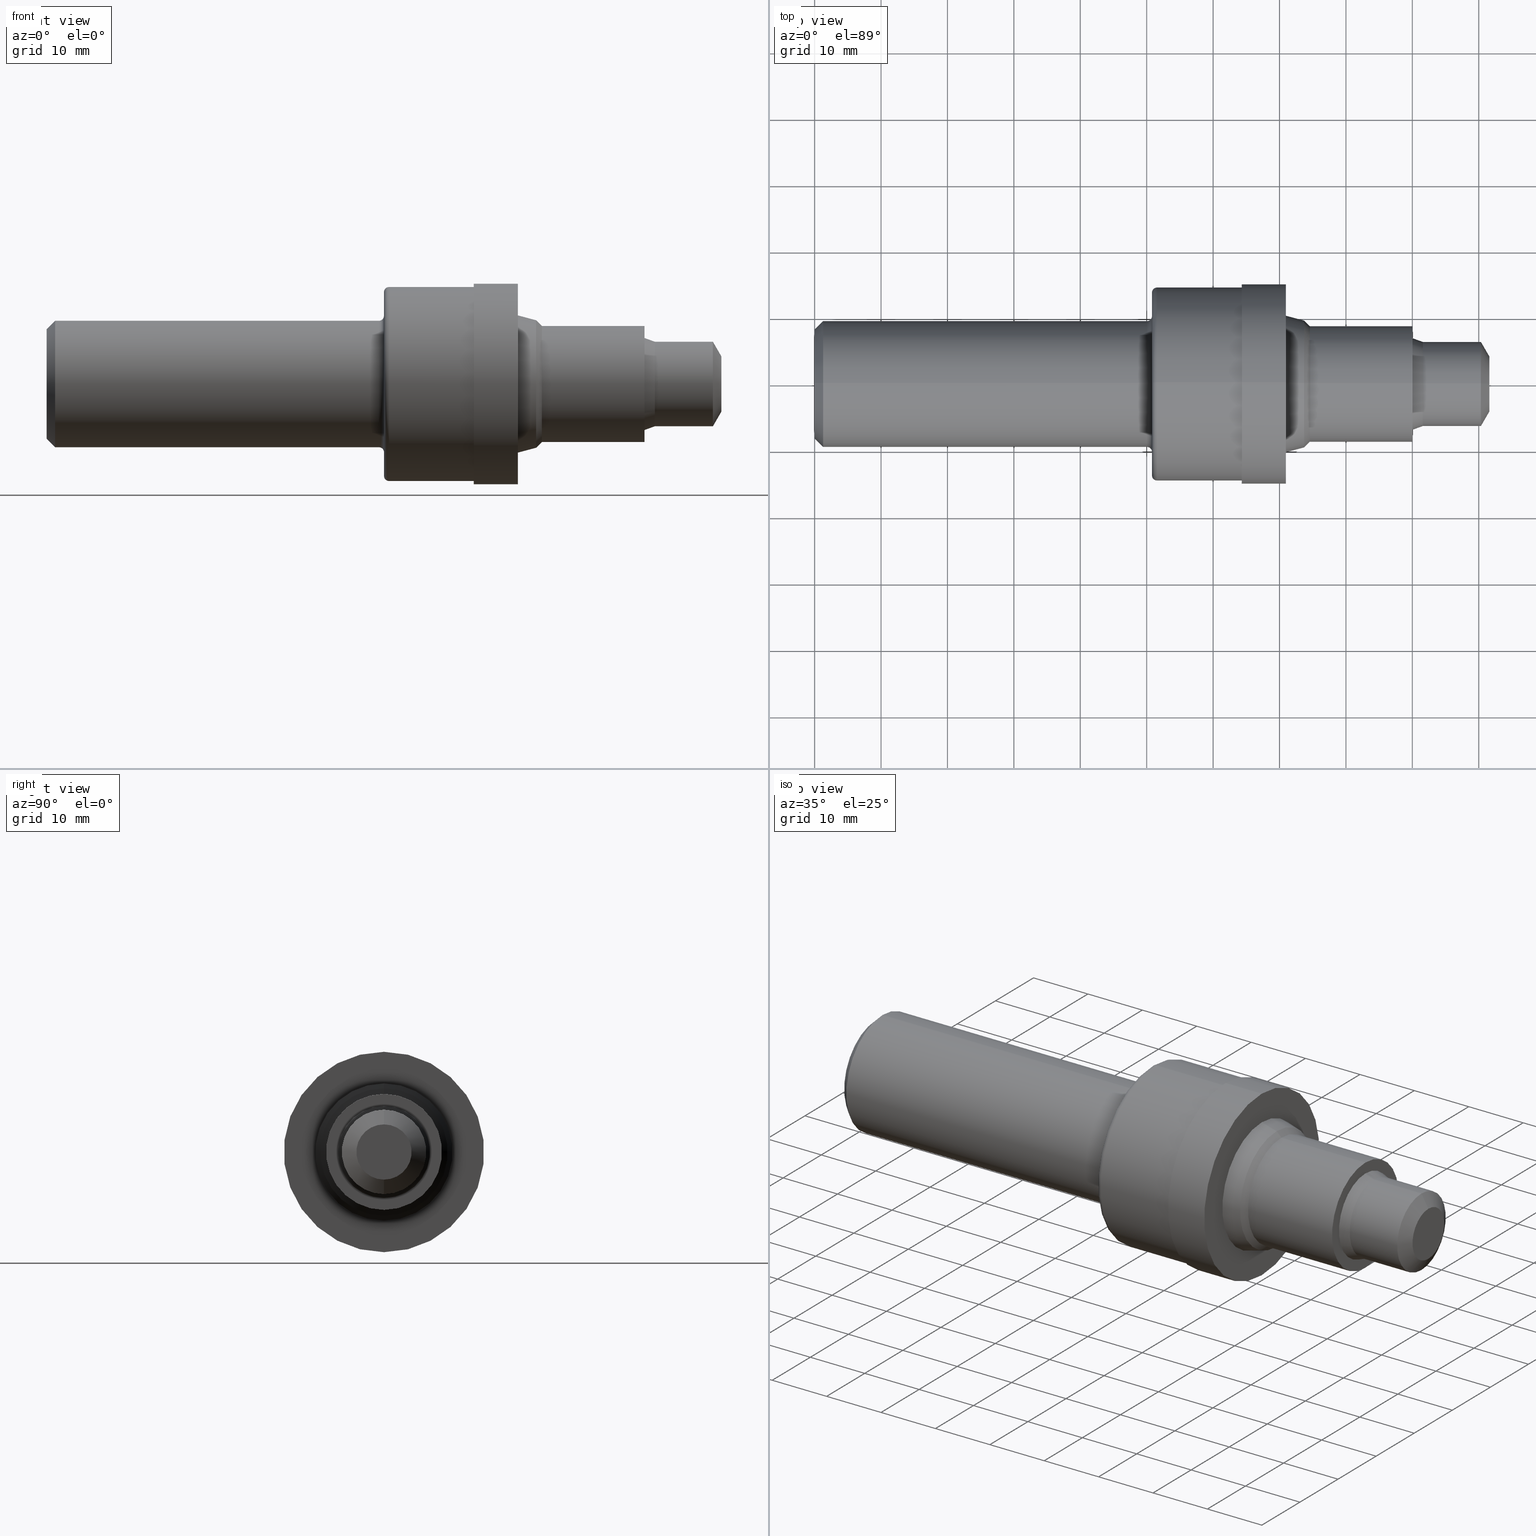
[diagram: canonical four-view strip — front | top / right | iso, engineering-drawing reading convention]
A machine part, canonical four-view strip (front | top / right | iso — engineering-drawing reading convention). The complete STEP part file that produces these views, byte-faithful:
ISO-10303-21;
HEADER;
FILE_DESCRIPTION (( 'STEP AP214' ),
    '1' );
FILE_NAME ('C08-2-FINISH-X8.STEP',
    '2019-02-15T17:53:27',
    ( '' ),
    ( '' ),
    'SwSTEP 2.0',
    'SolidWorks 2018',
    '' );
FILE_SCHEMA (( 'AUTOMOTIVE_DESIGN' ));
ENDSEC;

DATA;
#1 = MECHANICAL_DESIGN_GEOMETRIC_PRESENTATION_REPRESENTATION (  '', ( #17 ), #150 ) ;
#2 = DIRECTION ( 'NONE',  ( -0.0000000000000000000, 1.000000000000000000, 1.224646799147353207E-16 ) ) ;
#3 = DIRECTION ( 'NONE',  ( -1.000000000000000000, -0.0000000000000000000, -0.0000000000000000000 ) ) ;
#4 = EDGE_LOOP ( 'NONE', ( #625, #432, #792, #803 ) ) ;
#5 = DIRECTION ( 'NONE',  ( 0.0000000000000000000, 0.0000000000000000000, -1.000000000000000000 ) ) ;
#6 = ORIENTED_EDGE ( 'NONE', *, *, #236, .T. ) ;
#7 = LINE ( 'NONE', #721, #420 ) ;
#8 = ORIENTED_EDGE ( 'NONE', *, *, #804, .F. ) ;
#9 = AXIS2_PLACEMENT_3D ( 'NONE', #573, #264, #771 ) ;
#10 = CARTESIAN_POINT ( 'NONE',  ( 2.935811487217438565, 0.0000000000000000000, 0.3440000000000000280 ) ) ;
#11 = CIRCLE ( 'NONE', #235, 0.5939999999999999725 ) ;
#12 = CARTESIAN_POINT ( 'NONE',  ( 2.902000000000000135, 0.0000000000000000000, 0.0000000000000000000 ) ) ;
#13 = FACE_OUTER_BOUND ( 'NONE', #563, .T. ) ;
#14 = AXIS2_PLACEMENT_3D ( 'NONE', #600, #657, #501 ) ;
#15 = DIRECTION ( 'NONE',  ( 0.0000000000000000000, 0.0000000000000000000, 1.000000000000000000 ) ) ;
#16 = VERTEX_POINT ( 'NONE', #355 ) ;
#17 = STYLED_ITEM ( 'NONE', ( #810 ), #24 ) ;
#18 = CARTESIAN_POINT ( 'NONE',  ( 2.935811487217438565, 0.0000000000000000000, 0.0000000000000000000 ) ) ;
#19 = ORIENTED_EDGE ( 'NONE', *, *, #570, .F. ) ;
#20 = EDGE_CURVE ( 'NONE', #161, #121, #345, .T. ) ;
#21 = CARTESIAN_POINT ( 'NONE',  ( 2.794000000000000483, 0.5939999999999999725, 0.0000000000000000000 ) ) ;
#22 = EDGE_CURVE ( 'NONE', #255, #517, #652, .T. ) ;
#23 = CARTESIAN_POINT ( 'NONE',  ( 0.0000000000000000000, 0.0000000000000000000, -0.3248500000000001386 ) ) ;
#24 = MANIFOLD_SOLID_BREP ( '4C63FBBD-F3B5-4474-880A-299B5DAB4D3F-GAAFaceID16', #499 ) ;
#25 = DIRECTION ( 'NONE',  ( -1.000000000000000000, -0.0000000000000000000, -0.0000000000000000000 ) ) ;
#26 = DIRECTION ( 'NONE',  ( -1.000000000000000000, -0.0000000000000000000, -0.0000000000000000000 ) ) ;
#27 = EDGE_CURVE ( 'NONE', #743, #671, #754, .T. ) ;
#28 = EDGE_LOOP ( 'NONE', ( #358, #237, #366, #70 ) ) ;
#29 = DIRECTION ( 'NONE',  ( -1.000000000000000000, -0.0000000000000000000, -0.0000000000000000000 ) ) ;
#30 = CARTESIAN_POINT ( 'NONE',  ( 0.0000000000000000000, 0.0000000000000000000, 0.5749999999999998446 ) ) ;
#31 = ORIENTED_EDGE ( 'NONE', *, *, #804, .T. ) ;
#32 = CARTESIAN_POINT ( 'NONE',  ( 0.0000000000000000000, 7.274401986935277967E-17, -0.5939999999999999725 ) ) ;
#33 = ORIENTED_EDGE ( 'NONE', *, *, #765, .F. ) ;
#34 = ORIENTED_EDGE ( 'NONE', *, *, #97, .T. ) ;
#35 = ORIENTED_EDGE ( 'NONE', *, *, #695, .T. ) ;
#36 = CARTESIAN_POINT ( 'NONE',  ( 2.000000000000000000, 0.0000000000000000000, 0.4048500000000005428 ) ) ;
#37 = DIRECTION ( 'NONE',  ( -1.000000000000000000, -0.0000000000000000000, -0.0000000000000000000 ) ) ;
#38 = AXIS2_PLACEMENT_3D ( 'NONE', #114, #548, #295 ) ;
#39 = FACE_OUTER_BOUND ( 'NONE', #455, .T. ) ;
#40 =( NAMED_UNIT ( * ) PLANE_ANGLE_UNIT ( ) SI_UNIT ( $, .RADIAN. ) );
#41 = VECTOR ( 'NONE', #586, 39.37007874015748143 ) ;
#42 =( LENGTH_UNIT ( ) NAMED_UNIT ( * ) SI_UNIT ( $, .METRE. ) );
#43 = EDGE_CURVE ( 'NONE', #763, #476, #327, .T. ) ;
#44 = APPLICATION_PROTOCOL_DEFINITION ( 'draft international standard', 'automotive_design', 1998, #799 ) ;
#45 = DIRECTION ( 'NONE',  ( 0.0000000000000000000, 0.0000000000000000000, 1.000000000000000000 ) ) ;
#46 = AXIS2_PLACEMENT_3D ( 'NONE', #528, #147, #641 ) ;
#47 = LINE ( 'NONE', #753, #530 ) ;
#48 = ORIENTED_EDGE ( 'NONE', *, *, #236, .F. ) ;
#49 = VERTEX_POINT ( 'NONE', #172 ) ;
#50 = AXIS2_PLACEMENT_3D ( 'NONE', #280, #643, #219 ) ;
#51 = PRODUCT_DEFINITION_CONTEXT ( 'detailed design', #799, 'design' ) ;
#52 = EDGE_CURVE ( 'NONE', #395, #551, #83, .T. ) ;
#53 = DIRECTION ( 'NONE',  ( 0.0000000000000000000, 0.0000000000000000000, 1.000000000000000000 ) ) ;
#54 = ADVANCED_FACE ( 'NONE', ( #254 ), #231, .T. ) ;
#55 = FACE_OUTER_BOUND ( 'NONE', #465, .T. ) ;
#56 = AXIS2_PLACEMENT_3D ( 'NONE', #137, #697, #766 ) ;
#57 = CARTESIAN_POINT ( 'NONE',  ( 3.544000000000000039, 0.0000000000000000000, 0.2729661545245046228 ) ) ;
#58 = VECTOR ( 'NONE', #602, 39.37007874015748143 ) ;
#59 = VERTEX_POINT ( 'NONE', #36 ) ;
#60 = DIRECTION ( 'NONE',  ( -1.000000000000000000, -0.0000000000000000000, -0.0000000000000000000 ) ) ;
#61 = ADVANCED_FACE ( 'NONE', ( #63 ), #703, .T. ) ;
#62 = ORIENTED_EDGE ( 'NONE', *, *, #27, .T. ) ;
#63 = FACE_OUTER_BOUND ( 'NONE', #92, .T. ) ;
#64 = AXIS2_PLACEMENT_3D ( 'NONE', #21, #396, #778 ) ;
#65 = EDGE_CURVE ( 'NONE', #674, #476, #7, .T. ) ;
#66 = EDGE_CURVE ( 'NONE', #348, #260, #350, .T. ) ;
#67 = CARTESIAN_POINT ( 'NONE',  ( 3.606000000000000316, 0.0000000000000000000, 0.0000000000000000000 ) ) ;
#68 = FACE_OUTER_BOUND ( 'NONE', #4, .T. ) ;
#69 = VERTEX_POINT ( 'NONE', #98 ) ;
#70 = ORIENTED_EDGE ( 'NONE', *, *, #365, .F. ) ;
#71 = EDGE_CURVE ( 'NONE', #16, #124, #724, .T. ) ;
#72 = ORIENTED_EDGE ( 'NONE', *, *, #423, .T. ) ;
#73 = CARTESIAN_POINT ( 'NONE',  ( 2.000000000000000000, 0.0000000000000000000, 0.0000000000000000000 ) ) ;
#74 = CARTESIAN_POINT ( 'NONE',  ( 2.794000000000000483, 0.0000000000000000000, 0.0000000000000000000 ) ) ;
#75 = DIRECTION ( 'NONE',  ( -1.000000000000000000, -0.0000000000000000000, -0.0000000000000000000 ) ) ;
#76 = DIRECTION ( 'NONE',  ( -1.000000000000000000, -0.0000000000000000000, -0.0000000000000000000 ) ) ;
#77 = FACE_OUTER_BOUND ( 'NONE', #438, .T. ) ;
#78 = AXIS2_PLACEMENT_3D ( 'NONE', #744, #244, #668 ) ;
#79 = TOROIDAL_SURFACE ( 'NONE', #93, 0.5449999999999999289, 0.02999999999999998848 ) ;
#80 = CARTESIAN_POINT ( 'NONE',  ( 3.606000000000000316, 0.0000000000000000000, 0.2504000000000000115 ) ) ;
#81 = DIRECTION ( 'NONE',  ( -1.000000000000000000, -0.0000000000000000000, -0.0000000000000000000 ) ) ;
#82 = VERTEX_POINT ( 'NONE', #644 ) ;
#83 = LINE ( 'NONE', #795, #733 ) ;
#84 = ORIENTED_EDGE ( 'NONE', *, *, #566, .T. ) ;
#85 = EDGE_CURVE ( 'NONE', #715, #672, #473, .T. ) ;
#86 = CARTESIAN_POINT ( 'NONE',  ( 2.532000000000000028, 0.0000000000000000000, 0.0000000000000000000 ) ) ;
#87 = STYLED_ITEM ( 'NONE', ( #320 ), #605 ) ;
#88 = DIRECTION ( 'NONE',  ( 0.0000000000000000000, 0.0000000000000000000, 1.000000000000000000 ) ) ;
#89 = CIRCLE ( 'NONE', #633, 0.4067499999999999449 ) ;
#90 = CYLINDRICAL_SURFACE ( 'NONE', #330, 0.3440000000000000280 ) ;
#91 = ORIENTED_EDGE ( 'NONE', *, *, #52, .T. ) ;
#92 = EDGE_LOOP ( 'NONE', ( #583, #613, #794, #221 ) ) ;
#93 = AXIS2_PLACEMENT_3D ( 'NONE', #574, #75, #774 ) ;
#94 = CARTESIAN_POINT ( 'NONE',  ( 0.0000000000000000000, 0.0000000000000000000, 0.0000000000000000000 ) ) ;
#95 = CARTESIAN_POINT ( 'NONE',  ( 0.0000000000000000000, 3.066515585064972173E-17, -0.2504000000000000115 ) ) ;
#96 = DIRECTION ( 'NONE',  ( -1.000000000000000000, 0.0000000000000000000, -0.0000000000000000000 ) ) ;
#97 = EDGE_CURVE ( 'NONE', #395, #161, #788, .T. ) ;
#98 = CARTESIAN_POINT ( 'NONE',  ( 0.05000000000000000278, 4.590588526603853748E-17, 0.3748500000000000165 ) ) ;
#99 = CARTESIAN_POINT ( 'NONE',  ( 1.969999999999999973, 0.0000000000000000000, 0.0000000000000000000 ) ) ;
#100 = CARTESIAN_POINT ( 'NONE',  ( 0.0000000000000000000, 0.0000000000000000000, 0.0000000000000000000 ) ) ;
#101 = DIRECTION ( 'NONE',  ( 0.0000000000000000000, 0.0000000000000000000, 1.000000000000000000 ) ) ;
#102 = CIRCLE ( 'NONE', #275, 0.3440000000000000280 ) ;
#103 = DIRECTION ( 'NONE',  ( -1.000000000000000000, -0.0000000000000000000, -0.0000000000000000000 ) ) ;
#104 = AXIS2_PLACEMENT_3D ( 'NONE', #823, #379, #200 ) ;
#105 = EDGE_LOOP ( 'NONE', ( #48, #328, #123, #620 ) ) ;
#106 = EDGE_LOOP ( 'NONE', ( #139, #220, #8, #651 ) ) ;
#107 =( LENGTH_UNIT ( ) NAMED_UNIT ( * ) SI_UNIT ( $, .METRE. ) );
#108 = CARTESIAN_POINT ( 'NONE',  ( 3.606000000000000316, 3.066515585064972173E-17, -0.2504000000000000115 ) ) ;
#109 = SURFACE_SIDE_STYLE ('',( #165 ) ) ;
#110 = PLANE ( 'NONE',  #64 ) ;
#111 = AXIS2_PLACEMENT_3D ( 'NONE', #333, #704, #271 ) ;
#112 = FACE_BOUND ( 'NONE', #184, .T. ) ;
#113 = VECTOR ( 'NONE', #747, 39.37007874015748854 ) ;
#114 = CARTESIAN_POINT ( 'NONE',  ( 2.532000000000000028, 0.0000000000000000000, 0.0000000000000000000 ) ) ;
#115 = DIRECTION ( 'NONE',  ( -0.7071067811865439090, 0.0000000000000000000, 0.7071067811865511255 ) ) ;
#116 = EDGE_CURVE ( 'NONE', #121, #181, #623, .T. ) ;
#117 = CARTESIAN_POINT ( 'NONE',  ( 3.950000000000000178, 0.0000000000000000000, 0.0000000000000000000 ) ) ;
#118 = CARTESIAN_POINT ( 'NONE',  ( 1.969999999999999973, 0.0000000000000000000, 0.0000000000000000000 ) ) ;
#119 = LINE ( 'NONE', #389, #575 ) ;
#120 = ADVANCED_FACE ( 'NONE', ( #138 ), #285, .T. ) ;
#121 = VERTEX_POINT ( 'NONE', #470 ) ;
#122 = AXIS2_PLACEMENT_3D ( 'NONE', #746, #670, #53 ) ;
#123 = ORIENTED_EDGE ( 'NONE', *, *, #65, .T. ) ;
#124 = VERTEX_POINT ( 'NONE', #23 ) ;
#125 = ADVANCED_FACE ( 'NONE', ( #436 ), #750, .T. ) ;
#126 = EDGE_CURVE ( 'NONE', #675, #679, #102, .T. ) ;
#127 = FACE_OUTER_BOUND ( 'NONE', #334, .T. ) ;
#128 = PRESENTATION_LAYER_ASSIGNMENT (  '', '', ( #87 ) ) ;
#129 = VECTOR ( 'NONE', #115, 39.37007874015748143 ) ;
#130 = CARTESIAN_POINT ( 'NONE',  ( 2.902000000000000135, 0.0000000000000000000, 0.3778114872174386241 ) ) ;
#131 = ORIENTED_EDGE ( 'NONE', *, *, #136, .F. ) ;
#132 = DIRECTION ( 'NONE',  ( 0.0000000000000000000, 0.0000000000000000000, 1.000000000000000000 ) ) ;
#133 = AXIS2_PLACEMENT_3D ( 'NONE', #12, #81, #457 ) ;
#134 = DIRECTION ( 'NONE',  ( 0.0000000000000000000, 0.0000000000000000000, 1.000000000000000000 ) ) ;
#135 = LENGTH_MEASURE_WITH_UNIT ( LENGTH_MEASURE( 0.02539999999999999897 ), #107 );
#136 = EDGE_CURVE ( 'NONE', #702, #671, #769, .T. ) ;
#137 = CARTESIAN_POINT ( 'NONE',  ( 0.0000000000000000000, 0.0000000000000000000, 0.0000000000000000000 ) ) ;
#138 = FACE_OUTER_BOUND ( 'NONE', #796, .T. ) ;
#139 = ORIENTED_EDGE ( 'NONE', *, *, #153, .T. ) ;
#140 = DIRECTION ( 'NONE',  ( 0.0000000000000000000, 0.0000000000000000000, 1.000000000000000000 ) ) ;
#141 = ORIENTED_EDGE ( 'NONE', *, *, #365, .T. ) ;
#142 = ORIENTED_EDGE ( 'NONE', *, *, #805, .T. ) ;
#143 = AXIS2_PLACEMENT_3D ( 'NONE', #511, #621, #318 ) ;
#144 = SHAPE_DEFINITION_REPRESENTATION ( #407, #605 ) ;
#145 = DIRECTION ( 'NONE',  ( 1.000000000000000000, 0.0000000000000000000, 0.0000000000000000000 ) ) ;
#146 = CYLINDRICAL_SURFACE ( 'NONE', #56, 0.5749999999999998446 ) ;
#147 = DIRECTION ( 'NONE',  ( -1.000000000000000000, -0.0000000000000000000, -0.0000000000000000000 ) ) ;
#148 = AXIS2_PLACEMENT_3D ( 'NONE', #86, #215, #277 ) ;
#149 = CONICAL_SURFACE ( 'NONE', #677, 0.3748500000000000165, 0.7853981633974470578 ) ;
#150 =( GEOMETRIC_REPRESENTATION_CONTEXT ( 3 ) GLOBAL_UNCERTAINTY_ASSIGNED_CONTEXT ( ( #240 ) ) GLOBAL_UNIT_ASSIGNED_CONTEXT ( ( #798, #293, #229 ) ) REPRESENTATION_CONTEXT ( 'NONE', 'WORKASPACE' ) );
#151 = EDGE_LOOP ( 'NONE', ( #246, #628 ) ) ;
#152 = CARTESIAN_POINT ( 'NONE',  ( 0.05000000000000000278, 0.0000000000000000000, 0.0000000000000000000 ) ) ;
#153 = EDGE_CURVE ( 'NONE', #743, #446, #265, .T. ) ;
#154 = CARTESIAN_POINT ( 'NONE',  ( 3.544000000000000039, 3.342871274139963914E-17, -0.2729661545245046228 ) ) ;
#155 = DIRECTION ( 'NONE',  ( -1.000000000000000000, -0.0000000000000000000, -0.0000000000000000000 ) ) ;
#156 = EDGE_CURVE ( 'NONE', #199, #49, #119, .T. ) ;
#157 = CARTESIAN_POINT ( 'NONE',  ( 2.000000000000000000, 0.0000000000000000000, 0.0000000000000000000 ) ) ;
#158 = ORIENTED_EDGE ( 'NONE', *, *, #664, .F. ) ;
#159 = PLANE ( 'NONE',  #784 ) ;
#160 = DIRECTION ( 'NONE',  ( 0.0000000000000000000, 0.0000000000000000000, 1.000000000000000000 ) ) ;
#161 = VERTEX_POINT ( 'NONE', #263 ) ;
#162 = ORIENTED_EDGE ( 'NONE', *, *, #758, .T. ) ;
#163 = DIRECTION ( 'NONE',  ( 0.0000000000000000000, 0.0000000000000000000, 1.000000000000000000 ) ) ;
#164 = VERTEX_POINT ( 'NONE', #385 ) ;
#165 = SURFACE_STYLE_FILL_AREA ( #545 ) ;
#166 = DIRECTION ( 'NONE',  ( 0.0000000000000000000, 0.0000000000000000000, 1.000000000000000000 ) ) ;
#167 = ORIENTED_EDGE ( 'NONE', *, *, #758, .F. ) ;
#168 = DIRECTION ( 'NONE',  ( 0.0000000000000000000, 0.0000000000000000000, 1.000000000000000000 ) ) ;
#169 = ORIENTED_EDGE ( 'NONE', *, *, #572, .F. ) ;
#170 = CARTESIAN_POINT ( 'NONE',  ( 2.029999999999999805, 0.0000000000000000000, 0.5449999999999999289 ) ) ;
#171 = AXIS2_PLACEMENT_3D ( 'NONE', #660, #230, #239 ) ;
#172 = CARTESIAN_POINT ( 'NONE',  ( 2.029999999999999805, 7.041719095097280140E-17, -0.5749999999999998446 ) ) ;
#173 =( NAMED_UNIT ( * ) SI_UNIT ( $, .STERADIAN. ) SOLID_ANGLE_UNIT ( ) );
#174 = CIRCLE ( 'NONE', #104, 0.3248500000000001386 ) ;
#175 = DIRECTION ( 'NONE',  ( 0.0000000000000000000, 0.0000000000000000000, 1.000000000000000000 ) ) ;
#176 = VECTOR ( 'NONE', #797, 39.37007874015748143 ) ;
#177 = DIRECTION ( 'NONE',  ( 0.0000000000000000000, 0.0000000000000000000, 1.000000000000000000 ) ) ;
#178 = MECHANICAL_DESIGN_GEOMETRIC_PRESENTATION_REPRESENTATION (  '', ( #87 ), #213 ) ;
#179 = ORIENTED_EDGE ( 'NONE', *, *, #570, .T. ) ;
#180 = APPLICATION_PROTOCOL_DEFINITION ( 'draft international standard', 'automotive_design', 1998, #730 ) ;
#181 = VERTEX_POINT ( 'NONE', #205 ) ;
#182 = DIMENSIONAL_EXPONENTS ( 1.000000000000000000, 0.0000000000000000000, 0.0000000000000000000, 0.0000000000000000000, 0.0000000000000000000, 0.0000000000000000000, 0.0000000000000000000 ) ;
#183 = DIRECTION ( 'NONE',  ( -1.000000000000000000, -0.0000000000000000000, -0.0000000000000000000 ) ) ;
#184 = EDGE_LOOP ( 'NONE', ( #368, #732 ) ) ;
#185 = ORIENTED_EDGE ( 'NONE', *, *, #606, .T. ) ;
#186 = VECTOR ( 'NONE', #547, 39.37007874015748854 ) ;
#187 = EDGE_LOOP ( 'NONE', ( #462, #745, #91, #816 ) ) ;
#188 = ADVANCED_FACE ( 'NONE', ( #414 ), #388, .T. ) ;
#189 = DIRECTION ( 'NONE',  ( -1.000000000000000000, -0.0000000000000000000, -0.0000000000000000000 ) ) ;
#190 = AXIS2_PLACEMENT_3D ( 'NONE', #67, #513, #132 ) ;
#191 = CARTESIAN_POINT ( 'NONE',  ( 3.544000000000000039, 4.212784989066894949E-17, -0.3440000000000000280 ) ) ;
#192 = ADVANCED_FACE ( 'NONE', ( #608 ), #520, .F. ) ;
#193 = CYLINDRICAL_SURFACE ( 'NONE', #315, 0.5749999999999998446 ) ;
#194 = DIRECTION ( 'NONE',  ( -1.000000000000000000, -0.0000000000000000000, -0.0000000000000000000 ) ) ;
#195 = CONICAL_SURFACE ( 'NONE', #303, 0.3748500000000000165, 0.7853981633974470578 ) ;
#196 = ADVANCED_FACE ( 'NONE', ( #590 ), #79, .T. ) ;
#197 = AXIS2_PLACEMENT_3D ( 'NONE', #525, #689, #571 ) ;
#198 = AXIS2_PLACEMENT_3D ( 'NONE', #785, #340, #281 ) ;
#199 = VERTEX_POINT ( 'NONE', #696 ) ;
#200 = DIRECTION ( 'NONE',  ( 0.0000000000000000000, 0.0000000000000000000, 1.000000000000000000 ) ) ;
#201 = DIRECTION ( 'NONE',  ( 0.0000000000000000000, 0.0000000000000000000, 1.000000000000000000 ) ) ;
#202 = ORIENTED_EDGE ( 'NONE', *, *, #437, .T. ) ;
#203 = EDGE_CURVE ( 'NONE', #439, #675, #729, .T. ) ;
#204 = ORIENTED_EDGE ( 'NONE', *, *, #282, .T. ) ;
#205 = CARTESIAN_POINT ( 'NONE',  ( 3.606000000000000316, 3.204693429602468352E-17, -0.2504000000000000115 ) ) ;
#206 = ORIENTED_EDGE ( 'NONE', *, *, #762, .T. ) ;
#207 = DIRECTION ( 'NONE',  ( -1.000000000000000000, -0.0000000000000000000, -0.0000000000000000000 ) ) ;
#208 = DIRECTION ( 'NONE',  ( -1.000000000000000000, -0.0000000000000000000, -0.0000000000000000000 ) ) ;
#209 = FACE_OUTER_BOUND ( 'NONE', #764, .T. ) ;
#210 = AXIS2_PLACEMENT_3D ( 'NONE', #736, #667, #422 ) ;
#211 = LINE ( 'NONE', #216, #635 ) ;
#212 = EDGE_LOOP ( 'NONE', ( #431, #536, #62, #131 ) ) ;
#213 =( GEOMETRIC_REPRESENTATION_CONTEXT ( 3 ) GLOBAL_UNCERTAINTY_ASSIGNED_CONTEXT ( ( #467 ) ) GLOBAL_UNIT_ASSIGNED_CONTEXT ( ( #417, #543, #173 ) ) REPRESENTATION_CONTEXT ( 'NONE', 'WORKASPACE' ) );
#214 = DIRECTION ( 'NONE',  ( -1.000000000000000000, -0.0000000000000000000, -0.0000000000000000000 ) ) ;
#215 = DIRECTION ( 'NONE',  ( -1.000000000000000000, -0.0000000000000000000, -0.0000000000000000000 ) ) ;
#216 = CARTESIAN_POINT ( 'NONE',  ( 0.05000000000000000278, 0.0000000000000000000, -0.3748500000000000165 ) ) ;
#217 = CARTESIAN_POINT ( 'NONE',  ( 2.029999999999999805, 0.0000000000000000000, 0.0000000000000000000 ) ) ;
#218 = FACE_OUTER_BOUND ( 'NONE', #289, .T. ) ;
#219 = DIRECTION ( 'NONE',  ( 0.0000000000000000000, 0.0000000000000000000, -1.000000000000000000 ) ) ;
#220 = ORIENTED_EDGE ( 'NONE', *, *, #666, .T. ) ;
#221 = ORIENTED_EDGE ( 'NONE', *, *, #22, .F. ) ;
#222 = DIRECTION ( 'NONE',  ( 0.0000000000000000000, 0.0000000000000000000, 1.000000000000000000 ) ) ;
#223 = CARTESIAN_POINT ( 'NONE',  ( 0.0000000000000000000, 0.0000000000000000000, 0.0000000000000000000 ) ) ;
#224 = EDGE_CURVE ( 'NONE', #576, #49, #559, .T. ) ;
#225 = CYLINDRICAL_SURFACE ( 'NONE', #14, 0.3440000000000000280 ) ;
#226 = DIRECTION ( 'NONE',  ( -1.000000000000000000, -0.0000000000000000000, -0.0000000000000000000 ) ) ;
#227 = AXIS2_PLACEMENT_3D ( 'NONE', #381, #2, #638 ) ;
#228 = CIRCLE ( 'NONE', #723, 0.2504000000000000115 ) ;
#229 =( NAMED_UNIT ( * ) SI_UNIT ( $, .STERADIAN. ) SOLID_ANGLE_UNIT ( ) );
#230 = DIRECTION ( 'NONE',  ( -1.000000000000000000, -0.0000000000000000000, -0.0000000000000000000 ) ) ;
#231 = CYLINDRICAL_SURFACE ( 'NONE', #527, 0.3748500000000002386 ) ;
#232 = CARTESIAN_POINT ( 'NONE',  ( 4.000000000000000000, 2.005940346340065690E-17, -0.1637974596215561462 ) ) ;
#233 = EDGE_LOOP ( 'NONE', ( #510, #578, #669, #247 ) ) ;
#234 = CARTESIAN_POINT ( 'NONE',  ( 2.029999999999999805, 0.0000000000000000000, 0.0000000000000000000 ) ) ;
#235 = AXIS2_PLACEMENT_3D ( 'NONE', #384, #207, #450 ) ;
#236 = EDGE_CURVE ( 'NONE', #181, #763, #700, .T. ) ;
#237 = ORIENTED_EDGE ( 'NONE', *, *, #493, .T. ) ;
#238 = FACE_OUTER_BOUND ( 'NONE', #698, .T. ) ;
#239 = DIRECTION ( 'NONE',  ( 0.0000000000000000000, 0.0000000000000000000, 1.000000000000000000 ) ) ;
#240 = UNCERTAINTY_MEASURE_WITH_UNIT (LENGTH_MEASURE( 1.000000000000000082E-05 ), #798, 'distance_accuracy_value', 'NONE');
#241 = DIRECTION ( 'NONE',  ( -1.000000000000000000, -0.0000000000000000000, -0.0000000000000000000 ) ) ;
#242 = AXIS2_PLACEMENT_3D ( 'NONE', #787, #343, #720 ) ;
#243 = CIRCLE ( 'NONE', #504, 0.2504000000000000115 ) ;
#244 = DIRECTION ( 'NONE',  ( -0.0000000000000000000, 1.000000000000000000, 1.224646799147353207E-16 ) ) ;
#245 = EDGE_LOOP ( 'NONE', ( #653, #6, #663, #290 ) ) ;
#246 = ORIENTED_EDGE ( 'NONE', *, *, #760, .T. ) ;
#247 = ORIENTED_EDGE ( 'NONE', *, *, #424, .F. ) ;
#248 = CARTESIAN_POINT ( 'NONE',  ( 4.000000000000000000, 0.0000000000000000000, 0.1637974596215561462 ) ) ;
#249 = EDGE_CURVE ( 'NONE', #446, #743, #252, .T. ) ;
#250 = DIRECTION ( 'NONE',  ( 0.0000000000000000000, 0.0000000000000000000, 1.000000000000000000 ) ) ;
#251 = VECTOR ( 'NONE', #214, 39.37007874015748143 ) ;
#252 = CIRCLE ( 'NONE', #242, 0.3778114872174386241 ) ;
#253 = ADVANCED_FACE ( 'NONE', ( #374 ), #195, .T. ) ;
#254 = FACE_OUTER_BOUND ( 'NONE', #611, .T. ) ;
#255 = VERTEX_POINT ( 'NONE', #646 ) ;
#256 = ADVANCED_FACE ( 'NONE', ( #13, #683 ), #159, .F. ) ;
#257 = EDGE_CURVE ( 'NONE', #348, #59, #353, .T. ) ;
#258 = CIRCLE ( 'NONE', #597, 0.3748500000000005161 ) ;
#259 = CIRCLE ( 'NONE', #292, 0.2504000000000000115 ) ;
#260 = VERTEX_POINT ( 'NONE', #339 ) ;
#261 = EDGE_LOOP ( 'NONE', ( #31, #342 ) ) ;
#262 = CARTESIAN_POINT ( 'NONE',  ( 4.000000000000000000, 0.0000000000000000000, 0.0000000000000000000 ) ) ;
#263 = CARTESIAN_POINT ( 'NONE',  ( 4.000000000000000000, 2.536227965702519086E-17, -0.1637974596215561462 ) ) ;
#264 = DIRECTION ( 'NONE',  ( -1.000000000000000000, -0.0000000000000000000, -0.0000000000000000000 ) ) ;
#265 = CIRCLE ( 'NONE', #133, 0.3778114872174386241 ) ;
#266 = DIRECTION ( 'NONE',  ( 0.0000000000000000000, 0.0000000000000000000, 1.000000000000000000 ) ) ;
#267 = AXIS2_PLACEMENT_3D ( 'NONE', #262, #76, #201 ) ;
#268 = ORIENTED_EDGE ( 'NONE', *, *, #257, .F. ) ;
#269 = ORIENTED_EDGE ( 'NONE', *, *, #249, .F. ) ;
#270 = DIRECTION ( 'NONE',  ( -1.000000000000000000, -0.0000000000000000000, -0.0000000000000000000 ) ) ;
#271 = DIRECTION ( 'NONE',  ( 0.0000000000000000000, 0.0000000000000000000, 1.000000000000000000 ) ) ;
#272 = CIRCLE ( 'NONE', #560, 0.3440000000000000280 ) ;
#273 = CARTESIAN_POINT ( 'NONE',  ( 0.0000000000000000000, 0.0000000000000000000, 0.0000000000000000000 ) ) ;
#274 = AXIS2_PLACEMENT_3D ( 'NONE', #74, #516, #266 ) ;
#275 = AXIS2_PLACEMENT_3D ( 'NONE', #18, #464, #45 ) ;
#276 = CIRCLE ( 'NONE', #171, 0.3440000000000000280 ) ;
#277 = DIRECTION ( 'NONE',  ( 0.0000000000000000000, 0.0000000000000000000, 1.000000000000000000 ) ) ;
#278 = ORIENTED_EDGE ( 'NONE', *, *, #684, .F. ) ;
#279 = DIRECTION ( 'NONE',  ( -0.7071067811865439090, 8.659560562354977232E-17, -0.7071067811865511255 ) ) ;
#280 = CARTESIAN_POINT ( 'NONE',  ( 1.969999999999999973, 0.0000000000000000000, 0.4048500000000005428 ) ) ;
#281 = DIRECTION ( 'NONE',  ( 0.0000000000000000000, 0.0000000000000000000, 1.000000000000000000 ) ) ;
#282 = EDGE_CURVE ( 'NONE', #808, #576, #524, .T. ) ;
#283 = CARTESIAN_POINT ( 'NONE',  ( 3.544000000000000039, 0.3440000000000000280, 0.0000000000000000000 ) ) ;
#284 = DIRECTION ( 'NONE',  ( -1.000000000000000000, -0.0000000000000000000, -0.0000000000000000000 ) ) ;
#285 = TOROIDAL_SURFACE ( 'NONE', #688, 0.5449999999999999289, 0.02999999999999998848 ) ;
#286 = CARTESIAN_POINT ( 'NONE',  ( 0.0000000000000000000, 0.0000000000000000000, 0.3748500000000002386 ) ) ;
#287 = DIRECTION ( 'NONE',  ( -1.000000000000000000, -0.0000000000000000000, -0.0000000000000000000 ) ) ;
#288 = ORIENTED_EDGE ( 'NONE', *, *, #321, .F. ) ;
#289 = EDGE_LOOP ( 'NONE', ( #708, #626, #382, #206 ) ) ;
#290 = ORIENTED_EDGE ( 'NONE', *, *, #65, .F. ) ;
#291 = DIRECTION ( 'NONE',  ( 0.0000000000000000000, 0.0000000000000000000, -1.000000000000000000 ) ) ;
#292 = AXIS2_PLACEMENT_3D ( 'NONE', #802, #60, #442 ) ;
#293 =( NAMED_UNIT ( * ) PLANE_ANGLE_UNIT ( ) SI_UNIT ( $, .RADIAN. ) );
#294 = DIRECTION ( 'NONE',  ( 1.000000000000000000, 0.0000000000000000000, 0.0000000000000000000 ) ) ;
#295 = DIRECTION ( 'NONE',  ( 0.0000000000000000000, 0.0000000000000000000, 1.000000000000000000 ) ) ;
#296 = CONICAL_SURFACE ( 'NONE', #9, 0.3778114872174386241, 0.2617993877991502405 ) ;
#297 = EDGE_CURVE ( 'NONE', #181, #674, #228, .T. ) ;
#298 = CARTESIAN_POINT ( 'NONE',  ( 2.794000000000000483, 0.0000000000000000000, 0.0000000000000000000 ) ) ;
#299 = CIRCLE ( 'NONE', #78, 0.03000000000000002318 ) ;
#300 = EDGE_LOOP ( 'NONE', ( #35, #344 ) ) ;
#301 = DIRECTION ( 'NONE',  ( 0.0000000000000000000, 0.0000000000000000000, 1.000000000000000000 ) ) ;
#302 = CARTESIAN_POINT ( 'NONE',  ( 2.000000000000000000, 4.957982566348065676E-17, -0.4048500000000005428 ) ) ;
#303 = AXIS2_PLACEMENT_3D ( 'NONE', #410, #537, #541 ) ;
#304 = DIRECTION ( 'NONE',  ( 0.0000000000000000000, 0.0000000000000000000, 1.000000000000000000 ) ) ;
#305 = VECTOR ( 'NONE', #155, 39.37007874015748143 ) ;
#306 = ORIENTED_EDGE ( 'NONE', *, *, #748, .T. ) ;
#307 = ORIENTED_EDGE ( 'NONE', *, *, #20, .T. ) ;
#308 = CARTESIAN_POINT ( 'NONE',  ( 2.532000000000000028, 0.0000000000000000000, 0.0000000000000000000 ) ) ;
#309 = ORIENTED_EDGE ( 'NONE', *, *, #695, .F. ) ;
#310 = ADVANCED_FACE ( 'NONE', ( #507 ), #821, .T. ) ;
#311 = DIRECTION ( 'NONE',  ( 0.0000000000000000000, 0.0000000000000000000, -1.000000000000000000 ) ) ;
#312 = ADVANCED_FACE ( 'NONE', ( #662 ), #149, .T. ) ;
#313 = FACE_OUTER_BOUND ( 'NONE', #531, .T. ) ;
#314 = CIRCLE ( 'NONE', #770, 0.5939999999999999725 ) ;
#315 = AXIS2_PLACEMENT_3D ( 'NONE', #711, #634, #88 ) ;
#316 = ORIENTED_EDGE ( 'NONE', *, *, #402, .T. ) ;
#317 = AXIS2_PLACEMENT_3D ( 'NONE', #100, #789, #415 ) ;
#318 = DIRECTION ( 'NONE',  ( 0.0000000000000000000, 0.0000000000000000000, 1.000000000000000000 ) ) ;
#319 = CARTESIAN_POINT ( 'NONE',  ( 2.935811487217438565, 4.419820637043133756E-17, -0.3440000000000000280 ) ) ;
#320 = PRESENTATION_STYLE_ASSIGNMENT (( #480 ) ) ;
#321 = EDGE_CURVE ( 'NONE', #255, #715, #314, .T. ) ;
#322 = CARTESIAN_POINT ( 'NONE',  ( 2.902000000000000135, 4.626856285019373795E-17, -0.3778114872174386241 ) ) ;
#323 = DIRECTION ( 'NONE',  ( -1.000000000000000000, -0.0000000000000000000, -0.0000000000000000000 ) ) ;
#324 = EDGE_LOOP ( 'NONE', ( #594, #202, #474, #555 ) ) ;
#325 = CARTESIAN_POINT ( 'NONE',  ( 2.794000000000000483, 4.981250855531858926E-17, -0.4067499999999999449 ) ) ;
#326 = ORIENTED_EDGE ( 'NONE', *, *, #762, .F. ) ;
#327 = CIRCLE ( 'NONE', #506, 0.2729661545245046228 ) ;
#328 = ORIENTED_EDGE ( 'NONE', *, *, #297, .T. ) ;
#329 = ORIENTED_EDGE ( 'NONE', *, *, #156, .T. ) ;
#330 = AXIS2_PLACEMENT_3D ( 'NONE', #596, #740, #175 ) ;
#331 = VECTOR ( 'NONE', #3, 39.37007874015748143 ) ;
#332 = LINE ( 'NONE', #286, #176 ) ;
#333 = CARTESIAN_POINT ( 'NONE',  ( 0.05000000000000000278, 0.0000000000000000000, 0.0000000000000000000 ) ) ;
#334 = EDGE_LOOP ( 'NONE', ( #809, #604 ) ) ;
#335 = AXIS2_PLACEMENT_3D ( 'NONE', #791, #659, #294 ) ;
#336 = DIRECTION ( 'NONE',  ( -1.000000000000000000, 0.0000000000000000000, -0.0000000000000000000 ) ) ;
#337 = DIRECTION ( 'NONE',  ( 0.0000000000000000000, 0.0000000000000000000, 1.000000000000000000 ) ) ;
#338 = DIRECTION ( 'NONE',  ( 0.0000000000000000000, 0.0000000000000000000, 1.000000000000000000 ) ) ;
#339 = CARTESIAN_POINT ( 'NONE',  ( 1.969999999999999973, 4.590588526603859294E-17, -0.3748500000000005161 ) ) ;
#340 = DIRECTION ( 'NONE',  ( -1.000000000000000000, -0.0000000000000000000, -0.0000000000000000000 ) ) ;
#341 = CARTESIAN_POINT ( 'NONE',  ( 3.544000000000000039, 0.0000000000000000000, 0.0000000000000000000 ) ) ;
#342 = ORIENTED_EDGE ( 'NONE', *, *, #136, .T. ) ;
#343 = DIRECTION ( 'NONE',  ( -1.000000000000000000, -0.0000000000000000000, -0.0000000000000000000 ) ) ;
#344 = ORIENTED_EDGE ( 'NONE', *, *, #71, .T. ) ;
#345 = LINE ( 'NONE', #232, #186 ) ;
#346 = DIRECTION ( 'NONE',  ( -0.9396926207859080948, 0.0000000000000000000, 0.3420201433256695456 ) ) ;
#347 = EDGE_LOOP ( 'NONE', ( #568, #309, #141, #179 ) ) ;
#348 = VERTEX_POINT ( 'NONE', #654 ) ;
#349 = DIRECTION ( 'NONE',  ( -1.000000000000000000, -0.0000000000000000000, -0.0000000000000000000 ) ) ;
#350 = CIRCLE ( 'NONE', #198, 0.3748500000000005161 ) ;
#351 = LINE ( 'NONE', #624, #331 ) ;
#352 = DIRECTION ( 'NONE',  ( 0.0000000000000000000, 0.0000000000000000000, 1.000000000000000000 ) ) ;
#353 = CIRCLE ( 'NONE', #50, 0.03000000000000002318 ) ;
#354 = SURFACE_SIDE_STYLE ('',( #491 ) ) ;
#355 = CARTESIAN_POINT ( 'NONE',  ( 0.0000000000000000000, 4.284426826817016124E-17, 0.3248500000000001386 ) ) ;
#356 = FILL_AREA_STYLE ('',( #592 ) ) ;
#357 = CARTESIAN_POINT ( 'NONE',  ( 3.544000000000000039, 0.0000000000000000000, 0.3440000000000000280 ) ) ;
#358 = ORIENTED_EDGE ( 'NONE', *, *, #71, .F. ) ;
#359 = PRESENTATION_LAYER_ASSIGNMENT (  '', '', ( #17 ) ) ;
#360 = LENGTH_MEASURE_WITH_UNIT ( LENGTH_MEASURE( 0.02539999999999999897 ), #728 );
#361 = EDGE_CURVE ( 'NONE', #348, #69, #332, .T. ) ;
#362 = CARTESIAN_POINT ( 'NONE',  ( 2.935811487217438565, 0.0000000000000000000, 0.3440000000000000280 ) ) ;
#363 = CONICAL_SURFACE ( 'NONE', #544, 0.3440000000000000280, 0.7853981633974533860 ) ;
#364 = ORIENTED_EDGE ( 'NONE', *, *, #618, .F. ) ;
#365 = EDGE_CURVE ( 'NONE', #124, #82, #211, .T. ) ;
#366 = ORIENTED_EDGE ( 'NONE', *, *, #572, .T. ) ;
#367 = DIMENSIONAL_EXPONENTS ( 1.000000000000000000, 0.0000000000000000000, 0.0000000000000000000, 0.0000000000000000000, 0.0000000000000000000, 0.0000000000000000000, 0.0000000000000000000 ) ;
#368 = ORIENTED_EDGE ( 'NONE', *, *, #408, .F. ) ;
#369 = ADVANCED_FACE ( 'NONE', ( #617 ), #601, .T. ) ;
#370 = DIRECTION ( 'NONE',  ( -1.000000000000000000, -0.0000000000000000000, -0.0000000000000000000 ) ) ;
#371 = CIRCLE ( 'NONE', #148, 0.5939999999999999725 ) ;
#372 = AXIS2_PLACEMENT_3D ( 'NONE', #681, #194, #301 ) ;
#373 = CARTESIAN_POINT ( 'NONE',  ( 2.902000000000000135, 4.804053570275616052E-17, -0.3778114872174386241 ) ) ;
#374 = FACE_OUTER_BOUND ( 'NONE', #28, .T. ) ;
#375 = ADVANCED_FACE ( 'NONE', ( #801 ), #461, .T. ) ;
#376 = EDGE_CURVE ( 'NONE', #675, #743, #486, .T. ) ;
#377 = PRODUCT_DEFINITION ( 'UNKNOWN', '', #427, #51 ) ;
#378 = UNCERTAINTY_MEASURE_WITH_UNIT (LENGTH_MEASURE( 1.000000000000000082E-05 ), #416, 'distance_accuracy_value', 'NONE');
#379 = DIRECTION ( 'NONE',  ( -1.000000000000000000, -0.0000000000000000000, -0.0000000000000000000 ) ) ;
#380 = FACE_OUTER_BOUND ( 'NONE', #692, .T. ) ;
#381 = CARTESIAN_POINT ( 'NONE',  ( 2.029999999999999805, 6.674325055353073759E-17, -0.5449999999999999289 ) ) ;
#382 = ORIENTED_EDGE ( 'NONE', *, *, #257, .T. ) ;
#383 = ORIENTED_EDGE ( 'NONE', *, *, #664, .T. ) ;
#384 = CARTESIAN_POINT ( 'NONE',  ( 2.532000000000000028, 0.0000000000000000000, 0.0000000000000000000 ) ) ;
#385 = CARTESIAN_POINT ( 'NONE',  ( 2.000000000000000000, 0.0000000000000000000, 0.5449999999999999289 ) ) ;
#386 = CIRCLE ( 'NONE', #197, 0.3440000000000000280 ) ;
#387 = CARTESIAN_POINT ( 'NONE',  ( 2.794000000000000483, 0.0000000000000000000, 0.4067499999999999449 ) ) ;
#388 = CONICAL_SURFACE ( 'NONE', #742, 0.2504000000000000115, 0.3490658503988667838 ) ;
#389 = CARTESIAN_POINT ( 'NONE',  ( 0.0000000000000000000, 7.041719095097280140E-17, -0.5749999999999998446 ) ) ;
#390 = AXIS2_PLACEMENT_3D ( 'NONE', #447, #336, #780 ) ;
#391 = VERTEX_POINT ( 'NONE', #302 ) ;
#392 = CYLINDRICAL_SURFACE ( 'NONE', #701, 0.2504000000000000115 ) ;
#393 = ORIENTED_EDGE ( 'NONE', *, *, #126, .F. ) ;
#394 = CARTESIAN_POINT ( 'NONE',  ( 0.0000000000000000000, 0.0000000000000000000, 0.0000000000000000000 ) ) ;
#395 = VERTEX_POINT ( 'NONE', #248 ) ;
#396 = DIRECTION ( 'NONE',  ( -1.000000000000000000, 0.0000000000000000000, -0.0000000000000000000 ) ) ;
#397 = FACE_OUTER_BOUND ( 'NONE', #106, .T. ) ;
#398 = AXIS2_PLACEMENT_3D ( 'NONE', #404, #783, #338 ) ;
#399 = DIRECTION ( 'NONE',  ( -1.000000000000000000, -0.0000000000000000000, -0.0000000000000000000 ) ) ;
#400 = TOROIDAL_SURFACE ( 'NONE', #615, 0.4048500000000005428, 0.02999999999999998848 ) ;
#401 = CARTESIAN_POINT ( 'NONE',  ( 3.606000000000000316, 0.0000000000000000000, 0.0000000000000000000 ) ) ;
#402 = EDGE_CURVE ( 'NONE', #260, #391, #299, .T. ) ;
#403 = ORIENTED_EDGE ( 'NONE', *, *, #534, .F. ) ;
#404 = CARTESIAN_POINT ( 'NONE',  ( 4.000000000000000000, 0.0000000000000000000, 0.0000000000000000000 ) ) ;
#405 = ORIENTED_EDGE ( 'NONE', *, *, #224, .F. ) ;
#406 = CARTESIAN_POINT ( 'NONE',  ( 3.544000000000000039, 0.0000000000000000000, 0.0000000000000000000 ) ) ;
#407 = PRODUCT_DEFINITION_SHAPE ( 'NONE', 'NONE',  #377 ) ;
#408 = EDGE_CURVE ( 'NONE', #808, #199, #777, .T. ) ;
#409 = DIRECTION ( 'NONE',  ( 0.0000000000000000000, 0.0000000000000000000, 1.000000000000000000 ) ) ;
#410 = CARTESIAN_POINT ( 'NONE',  ( 0.05000000000000000278, 0.0000000000000000000, 0.0000000000000000000 ) ) ;
#411 = ORIENTED_EDGE ( 'NONE', *, *, #203, .T. ) ;
#412 = CIRCLE ( 'NONE', #579, 0.5749999999999998446 ) ;
#413 = CARTESIAN_POINT ( 'NONE',  ( 2.000000000000000000, 0.0000000000000000000, 0.0000000000000000000 ) ) ;
#414 = FACE_OUTER_BOUND ( 'NONE', #245, .T. ) ;
#415 = DIRECTION ( 'NONE',  ( 0.0000000000000000000, 0.0000000000000000000, 1.000000000000000000 ) ) ;
#416 =( CONVERSION_BASED_UNIT ( 'INCH', #360 ) LENGTH_UNIT ( ) NAMED_UNIT ( #367 ) );
#417 =( CONVERSION_BASED_UNIT ( 'INCH', #135 ) LENGTH_UNIT ( ) NAMED_UNIT ( #182 ) );
#418 = DIRECTION ( 'NONE',  ( 0.7071067811865483499, 0.0000000000000000000, -0.7071067811865465735 ) ) ;
#419 = AXIS2_PLACEMENT_3D ( 'NONE', #738, #562, #311 ) ;
#420 = VECTOR ( 'NONE', #346, 39.37007874015748143 ) ;
#421 = ORIENTED_EDGE ( 'NONE', *, *, #566, .F. ) ;
#422 = DIRECTION ( 'NONE',  ( 0.0000000000000000000, 0.0000000000000000000, 1.000000000000000000 ) ) ;
#423 = EDGE_CURVE ( 'NONE', #477, #439, #276, .T. ) ;
#424 = EDGE_CURVE ( 'NONE', #561, #164, #445, .T. ) ;
#425 = CIRCLE ( 'NONE', #523, 0.4048500000000005428 ) ;
#426 = CARTESIAN_POINT ( 'NONE',  ( 0.0000000000000000000, 0.0000000000000000000, 0.3440000000000000280 ) ) ;
#427 = PRODUCT_DEFINITION_FORMATION_WITH_SPECIFIED_SOURCE ( 'ANY', '', #505, .NOT_KNOWN. ) ;
#428 = FACE_OUTER_BOUND ( 'NONE', #772, .T. ) ;
#429 = DIRECTION ( 'NONE',  ( -1.000000000000000000, -0.0000000000000000000, -0.0000000000000000000 ) ) ;
#430 = ORIENTED_EDGE ( 'NONE', *, *, #606, .F. ) ;
#431 = ORIENTED_EDGE ( 'NONE', *, *, #666, .F. ) ;
#432 = ORIENTED_EDGE ( 'NONE', *, *, #116, .T. ) ;
#433 = CARTESIAN_POINT ( 'NONE',  ( 3.606000000000000316, 0.0000000000000000000, 0.0000000000000000000 ) ) ;
#434 = DIRECTION ( 'NONE',  ( -1.000000000000000000, -0.0000000000000000000, -0.0000000000000000000 ) ) ;
#435 = ADVANCED_FACE ( 'NONE', ( #581 ), #90, .T. ) ;
#436 = FACE_OUTER_BOUND ( 'NONE', #716, .T. ) ;
#437 = EDGE_CURVE ( 'NONE', #121, #551, #259, .T. ) ;
#438 = EDGE_LOOP ( 'NONE', ( #158, #72, #411, #430 ) ) ;
#439 = VERTEX_POINT ( 'NONE', #357 ) ;
#440 = ADVANCED_FACE ( 'NONE', ( #761, #428 ), #485, .F. ) ;
#441 = AXIS2_PLACEMENT_3D ( 'NONE', #406, #29, #471 ) ;
#442 = DIRECTION ( 'NONE',  ( 0.0000000000000000000, 0.0000000000000000000, 1.000000000000000000 ) ) ;
#443 = ADVANCED_FACE ( 'NONE', ( #741 ), #549, .T. ) ;
#444 = FACE_OUTER_BOUND ( 'NONE', #693, .T. ) ;
#445 = CIRCLE ( 'NONE', #210, 0.5449999999999999289 ) ;
#446 = VERTEX_POINT ( 'NONE', #373 ) ;
#447 = CARTESIAN_POINT ( 'NONE',  ( 4.000000000000000000, 0.1637974596215561462, 0.0000000000000000000 ) ) ;
#448 = PRODUCT_RELATED_PRODUCT_CATEGORY ( 'part', '', ( #505 ) ) ;
#449 = EDGE_CURVE ( 'NONE', #199, #808, #567, .T. ) ;
#450 = DIRECTION ( 'NONE',  ( 0.0000000000000000000, 0.0000000000000000000, 1.000000000000000000 ) ) ;
#451 = DIRECTION ( 'NONE',  ( 1.000000000000000000, 0.0000000000000000000, 0.0000000000000000000 ) ) ;
#452 = VECTOR ( 'NONE', #270, 39.37007874015748143 ) ;
#453 = ORIENTED_EDGE ( 'NONE', *, *, #361, .T. ) ;
#454 = ORIENTED_EDGE ( 'NONE', *, *, #85, .F. ) ;
#455 = EDGE_LOOP ( 'NONE', ( #665, #714, #204, #403 ) ) ;
#456 = CARTESIAN_POINT ( 'NONE',  ( 2.532000000000000028, 7.274401986935277967E-17, -0.5939999999999999725 ) ) ;
#457 = DIRECTION ( 'NONE',  ( 0.0000000000000000000, 0.0000000000000000000, 1.000000000000000000 ) ) ;
#458 = AXIS2_PLACEMENT_3D ( 'NONE', #308, #429, #552 ) ;
#459 = CIRCLE ( 'NONE', #793, 0.5449999999999999289 ) ;
#460 = DIRECTION ( 'NONE',  ( -1.000000000000000000, -0.0000000000000000000, -0.0000000000000000000 ) ) ;
#461 = CYLINDRICAL_SURFACE ( 'NONE', #122, 0.2504000000000000115 ) ;
#462 = ORIENTED_EDGE ( 'NONE', *, *, #20, .F. ) ;
#463 = EDGE_CURVE ( 'NONE', #551, #121, #243, .T. ) ;
#464 = DIRECTION ( 'NONE',  ( -1.000000000000000000, -0.0000000000000000000, -0.0000000000000000000 ) ) ;
#465 = EDGE_LOOP ( 'NONE', ( #288, #512 ) ) ;
#466 = DIRECTION ( 'NONE',  ( 0.0000000000000000000, 0.0000000000000000000, 1.000000000000000000 ) ) ;
#467 = UNCERTAINTY_MEASURE_WITH_UNIT (LENGTH_MEASURE( 1.000000000000000082E-05 ), #417, 'distance_accuracy_value', 'NONE');
#468 = PLANE ( 'NONE',  #482 ) ;
#469 = DIRECTION ( 'NONE',  ( 0.0000000000000000000, 0.0000000000000000000, -1.000000000000000000 ) ) ;
#470 = CARTESIAN_POINT ( 'NONE',  ( 3.950000000000000178, 3.066515585064972173E-17, -0.2504000000000000115 ) ) ;
#471 = DIRECTION ( 'NONE',  ( 0.0000000000000000000, 0.0000000000000000000, 1.000000000000000000 ) ) ;
#472 = DIRECTION ( 'NONE',  ( -0.0000000000000000000, 0.0000000000000000000, 1.000000000000000000 ) ) ;
#473 = LINE ( 'NONE', #32, #305 ) ;
#474 = ORIENTED_EDGE ( 'NONE', *, *, #509, .T. ) ;
#475 = DIRECTION ( 'NONE',  ( 0.0000000000000000000, 0.0000000000000000000, 1.000000000000000000 ) ) ;
#476 = VERTEX_POINT ( 'NONE', #57 ) ;
#477 = VERTEX_POINT ( 'NONE', #191 ) ;
#478 = DIRECTION ( 'NONE',  ( -0.9659258262890679791, 0.0000000000000000000, 0.2588190451025215166 ) ) ;
#479 =( NAMED_UNIT ( * ) SI_UNIT ( $, .STERADIAN. ) SOLID_ANGLE_UNIT ( ) );
#480 = SURFACE_STYLE_USAGE ( .BOTH. , #354 ) ;
#481 = CARTESIAN_POINT ( 'NONE',  ( 2.000000000000000000, 6.858022075225177566E-17, -0.5449999999999999289 ) ) ;
#482 = AXIS2_PLACEMENT_3D ( 'NONE', #582, #145, #529 ) ;
#483 = SURFACE_STYLE_USAGE ( .BOTH. , #109 ) ;
#484 = CIRCLE ( 'NONE', #143, 0.1637974596215561462 ) ;
#485 = PLANE ( 'NONE',  #419 ) ;
#486 = LINE ( 'NONE', #362, #129 ) ;
#487 = ORIENTED_EDGE ( 'NONE', *, *, #463, .F. ) ;
#488 = ORIENTED_EDGE ( 'NONE', *, *, #423, .F. ) ;
#489 = DIRECTION ( 'NONE',  ( -0.9396926207859080948, 4.188538737677001626E-17, -0.3420201433256695456 ) ) ;
#490 = AXIS2_PLACEMENT_3D ( 'NONE', #532, #589, #163 ) ;
#491 = SURFACE_STYLE_FILL_AREA ( #356 ) ;
#492 = DIRECTION ( 'NONE',  ( 0.0000000000000000000, 0.0000000000000000000, 1.000000000000000000 ) ) ;
#493 = EDGE_CURVE ( 'NONE', #16, #69, #712, .T. ) ;
#494 = ORIENTED_EDGE ( 'NONE', *, *, #282, .F. ) ;
#495 = ORIENTED_EDGE ( 'NONE', *, *, #66, .T. ) ;
#496 = ADVANCED_FACE ( 'NONE', ( #380 ), #363, .T. ) ;
#497 = ORIENTED_EDGE ( 'NONE', *, *, #790, .F. ) ;
#498 = VECTOR ( 'NONE', #533, 39.37007874015748143 ) ;
#499 = CLOSED_SHELL ( 'NONE', ( #125, #508, #188, #435, #496, #819, #61, #676, #120, #814, #310, #253, #192, #312, #54, #502, #440, #196, #610, #757, #614, #564, #682, #443, #557, #256, #369, #375, #749, #751 ) ) ;
#500 = EDGE_LOOP ( 'NONE', ( #495, #84, #169, #609 ) ) ;
#501 = DIRECTION ( 'NONE',  ( 0.0000000000000000000, 0.0000000000000000000, 1.000000000000000000 ) ) ;
#502 = ADVANCED_FACE ( 'NONE', ( #218 ), #400, .F. ) ;
#503 = LINE ( 'NONE', #322, #818 ) ;
#504 = AXIS2_PLACEMENT_3D ( 'NONE', #117, #183, #673 ) ;
#505 = PRODUCT ( 'C08-2-FINISH-X8', 'C08-2-FINISH-X8', '', ( #735 ) ) ;
#506 = AXIS2_PLACEMENT_3D ( 'NONE', #727, #287, #655 ) ;
#507 = FACE_OUTER_BOUND ( 'NONE', #500, .T. ) ;
#508 = ADVANCED_FACE ( 'NONE', ( #68 ), #392, .T. ) ;
#509 = EDGE_CURVE ( 'NONE', #551, #674, #47, .T. ) ;
#510 = ORIENTED_EDGE ( 'NONE', *, *, #748, .F. ) ;
#511 = CARTESIAN_POINT ( 'NONE',  ( 4.000000000000000000, 0.0000000000000000000, 0.0000000000000000000 ) ) ;
#512 = ORIENTED_EDGE ( 'NONE', *, *, #619, .F. ) ;
#513 = DIRECTION ( 'NONE',  ( -1.000000000000000000, -0.0000000000000000000, -0.0000000000000000000 ) ) ;
#514 = DIRECTION ( 'NONE',  ( -1.000000000000000000, -0.0000000000000000000, -0.0000000000000000000 ) ) ;
#515 = ORIENTED_EDGE ( 'NONE', *, *, #126, .T. ) ;
#516 = DIRECTION ( 'NONE',  ( -1.000000000000000000, -0.0000000000000000000, -0.0000000000000000000 ) ) ;
#517 = VERTEX_POINT ( 'NONE', #813 ) ;
#518 = COLOUR_RGB ( '',0.7529411764705882248, 0.7529411764705882248, 0.7529411764705882248 ) ;
#519 = ORIENTED_EDGE ( 'NONE', *, *, #522, .F. ) ;
#520 = PLANE ( 'NONE',  #705 ) ;
#521 = FACE_OUTER_BOUND ( 'NONE', #187, .T. ) ;
#522 = EDGE_CURVE ( 'NONE', #576, #164, #690, .T. ) ;
#523 = AXIS2_PLACEMENT_3D ( 'NONE', #157, #587, #222 ) ;
#524 = LINE ( 'NONE', #30, #41 ) ;
#525 = CARTESIAN_POINT ( 'NONE',  ( 2.935811487217438565, 0.0000000000000000000, 0.0000000000000000000 ) ) ;
#526 = PLANE ( 'NONE',  #390 ) ;
#527 = AXIS2_PLACEMENT_3D ( 'NONE', #223, #538, #166 ) ;
#528 = CARTESIAN_POINT ( 'NONE',  ( 4.000000000000000000, 0.0000000000000000000, 0.0000000000000000000 ) ) ;
#529 = DIRECTION ( 'NONE',  ( 0.0000000000000000000, 0.0000000000000000000, -1.000000000000000000 ) ) ;
#530 = VECTOR ( 'NONE', #558, 39.37007874015748143 ) ;
#531 = EDGE_LOOP ( 'NONE', ( #734, #329, #405, #494 ) ) ;
#532 = CARTESIAN_POINT ( 'NONE',  ( 2.029999999999999805, 0.0000000000000000000, 0.0000000000000000000 ) ) ;
#533 = DIRECTION ( 'NONE',  ( -1.000000000000000000, -0.0000000000000000000, -0.0000000000000000000 ) ) ;
#534 = EDGE_CURVE ( 'NONE', #49, #576, #412, .T. ) ;
#535 = DIRECTION ( 'NONE',  ( -1.000000000000000000, -0.0000000000000000000, -0.0000000000000000000 ) ) ;
#536 = ORIENTED_EDGE ( 'NONE', *, *, #249, .T. ) ;
#537 = DIRECTION ( 'NONE',  ( 1.000000000000000000, 0.0000000000000000000, 0.0000000000000000000 ) ) ;
#538 = DIRECTION ( 'NONE',  ( -1.000000000000000000, -0.0000000000000000000, -0.0000000000000000000 ) ) ;
#539 = CARTESIAN_POINT ( 'NONE',  ( 2.902000000000000135, 0.0000000000000000000, 0.0000000000000000000 ) ) ;
#540 = CIRCLE ( 'NONE', #111, 0.3748500000000000165 ) ;
#541 = DIRECTION ( 'NONE',  ( 0.0000000000000000000, 0.0000000000000000000, -1.000000000000000000 ) ) ;
#542 = VECTOR ( 'NONE', #489, 39.37007874015748143 ) ;
#543 =( NAMED_UNIT ( * ) PLANE_ANGLE_UNIT ( ) SI_UNIT ( $, .RADIAN. ) );
#544 = AXIS2_PLACEMENT_3D ( 'NONE', #807, #370, #304 ) ;
#545 = FILL_AREA_STYLE ('',( #598 ) ) ;
#546 = ORIENTED_EDGE ( 'NONE', *, *, #765, .T. ) ;
#547 = DIRECTION ( 'NONE',  ( -0.4999999999999979461, 1.060575238724908024E-16, -0.8660254037844397068 ) ) ;
#548 = DIRECTION ( 'NONE',  ( -1.000000000000000000, -0.0000000000000000000, -0.0000000000000000000 ) ) ;
#549 = CONICAL_SURFACE ( 'NONE', #372, 0.3440000000000000280, 0.7853981633974533860 ) ;
#550 = ORIENTED_EDGE ( 'NONE', *, *, #619, .T. ) ;
#551 = VERTEX_POINT ( 'NONE', #817 ) ;
#552 = DIRECTION ( 'NONE',  ( 0.0000000000000000000, 0.0000000000000000000, 1.000000000000000000 ) ) ;
#553 = DIMENSIONAL_EXPONENTS ( 1.000000000000000000, 0.0000000000000000000, 0.0000000000000000000, 0.0000000000000000000, 0.0000000000000000000, 0.0000000000000000000, 0.0000000000000000000 ) ;
#554 = DIRECTION ( 'NONE',  ( 0.0000000000000000000, 0.0000000000000000000, 1.000000000000000000 ) ) ;
#555 = ORIENTED_EDGE ( 'NONE', *, *, #297, .F. ) ;
#556 = FACE_BOUND ( 'NONE', #261, .T. ) ;
#557 = ADVANCED_FACE ( 'NONE', ( #77 ), #225, .T. ) ;
#558 = DIRECTION ( 'NONE',  ( -1.000000000000000000, -0.0000000000000000000, -0.0000000000000000000 ) ) ;
#559 = CIRCLE ( 'NONE', #490, 0.5749999999999998446 ) ;
#560 = AXIS2_PLACEMENT_3D ( 'NONE', #341, #786, #409 ) ;
#561 = VERTEX_POINT ( 'NONE', #481 ) ;
#562 = DIRECTION ( 'NONE',  ( 1.000000000000000000, 0.0000000000000000000, 0.0000000000000000000 ) ) ;
#563 = EDGE_LOOP ( 'NONE', ( #33, #488 ) ) ;
#564 = ADVANCED_FACE ( 'NONE', ( #55, #556 ), #110, .F. ) ;
#565 = TOROIDAL_SURFACE ( 'NONE', #775, 0.4048500000000005428, 0.02999999999999998848 ) ;
#566 = EDGE_CURVE ( 'NONE', #260, #82, #699, .T. ) ;
#567 = CIRCLE ( 'NONE', #458, 0.5749999999999999556 ) ;
#568 = ORIENTED_EDGE ( 'NONE', *, *, #493, .F. ) ;
#569 = EDGE_LOOP ( 'NONE', ( #326, #637 ) ) ;
#570 = EDGE_CURVE ( 'NONE', #82, #69, #725, .T. ) ;
#571 = DIRECTION ( 'NONE',  ( 0.0000000000000000000, 0.0000000000000000000, 1.000000000000000000 ) ) ;
#572 = EDGE_CURVE ( 'NONE', #69, #82, #540, .T. ) ;
#573 = CARTESIAN_POINT ( 'NONE',  ( 2.902000000000000135, 0.0000000000000000000, 0.0000000000000000000 ) ) ;
#574 = CARTESIAN_POINT ( 'NONE',  ( 2.029999999999999805, 0.0000000000000000000, 0.0000000000000000000 ) ) ;
#575 = VECTOR ( 'NONE', #241, 39.37007874015748143 ) ;
#576 = VERTEX_POINT ( 'NONE', #707 ) ;
#577 = VECTOR ( 'NONE', #478, 39.37007874015748143 ) ;
#578 = ORIENTED_EDGE ( 'NONE', *, *, #534, .T. ) ;
#579 = AXIS2_PLACEMENT_3D ( 'NONE', #234, #226, #177 ) ;
#580 = LINE ( 'NONE', #642, #776 ) ;
#581 = FACE_OUTER_BOUND ( 'NONE', #773, .T. ) ;
#582 = CARTESIAN_POINT ( 'NONE',  ( 2.532000000000000028, 0.5749999999999999556, 0.0000000000000000000 ) ) ;
#583 = ORIENTED_EDGE ( 'NONE', *, *, #321, .T. ) ;
#584 = DIRECTION ( 'NONE',  ( 0.0000000000000000000, 0.0000000000000000000, 1.000000000000000000 ) ) ;
#585 = ORIENTED_EDGE ( 'NONE', *, *, #224, .T. ) ;
#586 = DIRECTION ( 'NONE',  ( -1.000000000000000000, -0.0000000000000000000, -0.0000000000000000000 ) ) ;
#587 = DIRECTION ( 'NONE',  ( -1.000000000000000000, -0.0000000000000000000, -0.0000000000000000000 ) ) ;
#588 = CARTESIAN_POINT ( 'NONE',  ( 1.969999999999999973, 0.0000000000000000000, 0.0000000000000000000 ) ) ;
#589 = DIRECTION ( 'NONE',  ( -1.000000000000000000, -0.0000000000000000000, -0.0000000000000000000 ) ) ;
#590 = FACE_OUTER_BOUND ( 'NONE', #233, .T. ) ;
#591 = DIRECTION ( 'NONE',  ( -0.4999999999999979461, 0.0000000000000000000, 0.8660254037844397068 ) ) ;
#592 = FILL_AREA_STYLE_COLOUR ( '', #710 ) ;
#593 = DIRECTION ( 'NONE',  ( 0.0000000000000000000, -1.000000000000000000, 0.0000000000000000000 ) ) ;
#594 = ORIENTED_EDGE ( 'NONE', *, *, #116, .F. ) ;
#595 = EDGE_CURVE ( 'NONE', #517, #672, #371, .T. ) ;
#596 = CARTESIAN_POINT ( 'NONE',  ( 0.0000000000000000000, 0.0000000000000000000, 0.0000000000000000000 ) ) ;
#597 = AXIS2_PLACEMENT_3D ( 'NONE', #99, #535, #160 ) ;
#598 = FILL_AREA_STYLE_COLOUR ( '', #518 ) ;
#599 = CIRCLE ( 'NONE', #441, 0.2729661545245046228 ) ;
#600 = CARTESIAN_POINT ( 'NONE',  ( 0.0000000000000000000, 0.0000000000000000000, 0.0000000000000000000 ) ) ;
#601 = CONICAL_SURFACE ( 'NONE', #812, 0.2504000000000000115, 0.3490658503988667838 ) ;
#602 = DIRECTION ( 'NONE',  ( -1.000000000000000000, -0.0000000000000000000, -0.0000000000000000000 ) ) ;
#603 = DIRECTION ( 'NONE',  ( 0.0000000000000000000, 0.0000000000000000000, 1.000000000000000000 ) ) ;
#604 = ORIENTED_EDGE ( 'NONE', *, *, #706, .F. ) ;
#605 = ADVANCED_BREP_SHAPE_REPRESENTATION ( 'C08-2-FINISH-X8', ( #24, #335 ), #820 ) ;
#606 = EDGE_CURVE ( 'NONE', #679, #675, #386, .T. ) ;
#607 = CARTESIAN_POINT ( 'NONE',  ( 0.05000000000000000278, 4.590588526603853748E-17, 0.3748500000000000165 ) ) ;
#608 = FACE_OUTER_BOUND ( 'NONE', #300, .T. ) ;
#609 = ORIENTED_EDGE ( 'NONE', *, *, #361, .F. ) ;
#610 = ADVANCED_FACE ( 'NONE', ( #39 ), #193, .T. ) ;
#611 = EDGE_LOOP ( 'NONE', ( #421, #630, #453, #19 ) ) ;
#612 = LENGTH_MEASURE_WITH_UNIT ( LENGTH_MEASURE( 0.02539999999999999897 ), #42 );
#613 = ORIENTED_EDGE ( 'NONE', *, *, #85, .T. ) ;
#614 = ADVANCED_FACE ( 'NONE', ( #209 ), #658, .T. ) ;
#615 = AXIS2_PLACEMENT_3D ( 'NONE', #118, #434, #250 ) ;
#616 = CIRCLE ( 'NONE', #190, 0.2504000000000000115 ) ;
#617 = FACE_OUTER_BOUND ( 'NONE', #105, .T. ) ;
#618 = EDGE_CURVE ( 'NONE', #672, #517, #11, .T. ) ;
#619 = EDGE_CURVE ( 'NONE', #715, #255, #680, .T. ) ;
#620 = ORIENTED_EDGE ( 'NONE', *, *, #43, .F. ) ;
#621 = DIRECTION ( 'NONE',  ( -1.000000000000000000, -0.0000000000000000000, -0.0000000000000000000 ) ) ;
#622 = DIRECTION ( 'NONE',  ( -1.000000000000000000, -0.0000000000000000000, -0.0000000000000000000 ) ) ;
#623 = LINE ( 'NONE', #95, #452 ) ;
#624 = CARTESIAN_POINT ( 'NONE',  ( 0.0000000000000000000, 4.212784989066894949E-17, -0.3440000000000000280 ) ) ;
#625 = ORIENTED_EDGE ( 'NONE', *, *, #463, .T. ) ;
#626 = ORIENTED_EDGE ( 'NONE', *, *, #66, .F. ) ;
#627 = CARTESIAN_POINT ( 'NONE',  ( 3.606000000000000316, 0.0000000000000000000, 0.0000000000000000000 ) ) ;
#628 = ORIENTED_EDGE ( 'NONE', *, *, #43, .T. ) ;
#629 = ORIENTED_EDGE ( 'NONE', *, *, #684, .T. ) ;
#630 = ORIENTED_EDGE ( 'NONE', *, *, #790, .T. ) ;
#631 = DIRECTION ( 'NONE',  ( -0.9659258262890679791, 3.169619151431774186E-17, -0.2588190451025215166 ) ) ;
#632 = CIRCLE ( 'NONE', #227, 0.02999999999999995379 ) ;
#633 = AXIS2_PLACEMENT_3D ( 'NONE', #650, #284, #722 ) ;
#634 = DIRECTION ( 'NONE',  ( -1.000000000000000000, -0.0000000000000000000, -0.0000000000000000000 ) ) ;
#635 = VECTOR ( 'NONE', #418, 39.37007874015748854 ) ;
#636 = CARTESIAN_POINT ( 'NONE',  ( 0.0000000000000000000, 4.590588526603856213E-17, -0.3748500000000002386 ) ) ;
#637 = ORIENTED_EDGE ( 'NONE', *, *, #805, .F. ) ;
#638 = DIRECTION ( 'NONE',  ( 0.0000000000000000000, -1.224646799147354933E-16, 1.000000000000000000 ) ) ;
#639 = AXIS2_PLACEMENT_3D ( 'NONE', #394, #399, #466 ) ;
#640 = DIRECTION ( 'NONE',  ( 1.000000000000000000, 0.0000000000000000000, 0.0000000000000000000 ) ) ;
#641 = DIRECTION ( 'NONE',  ( 0.0000000000000000000, 0.0000000000000000000, 1.000000000000000000 ) ) ;
#642 = CARTESIAN_POINT ( 'NONE',  ( 2.935811487217438565, 4.212784989066894949E-17, -0.3440000000000000280 ) ) ;
#643 = DIRECTION ( 'NONE',  ( 0.0000000000000000000, -1.000000000000000000, 0.0000000000000000000 ) ) ;
#644 = CARTESIAN_POINT ( 'NONE',  ( 0.05000000000000000278, 0.0000000000000000000, -0.3748500000000000165 ) ) ;
#645 = CARTESIAN_POINT ( 'NONE',  ( 2.532000000000000028, 0.0000000000000000000, 0.5749999999999999556 ) ) ;
#646 = CARTESIAN_POINT ( 'NONE',  ( 2.794000000000000483, 0.0000000000000000000, 0.5939999999999999725 ) ) ;
#647 = ORIENTED_EDGE ( 'NONE', *, *, #153, .F. ) ;
#648 = CARTESIAN_POINT ( 'NONE',  ( 2.902000000000000135, 0.0000000000000000000, 0.3778114872174386241 ) ) ;
#649 = ORIENTED_EDGE ( 'NONE', *, *, #52, .F. ) ;
#650 = CARTESIAN_POINT ( 'NONE',  ( 2.794000000000000483, 0.0000000000000000000, 0.0000000000000000000 ) ) ;
#651 = ORIENTED_EDGE ( 'NONE', *, *, #27, .F. ) ;
#652 = LINE ( 'NONE', #719, #498 ) ;
#653 = ORIENTED_EDGE ( 'NONE', *, *, #709, .T. ) ;
#654 = CARTESIAN_POINT ( 'NONE',  ( 1.969999999999999973, 0.0000000000000000000, 0.3748500000000005161 ) ) ;
#655 = DIRECTION ( 'NONE',  ( 0.0000000000000000000, 0.0000000000000000000, 1.000000000000000000 ) ) ;
#656 = DIRECTION ( 'NONE',  ( -1.000000000000000000, -0.0000000000000000000, -0.0000000000000000000 ) ) ;
#657 = DIRECTION ( 'NONE',  ( -1.000000000000000000, -0.0000000000000000000, -0.0000000000000000000 ) ) ;
#658 = CYLINDRICAL_SURFACE ( 'NONE', #691, 0.5939999999999999725 ) ;
#659 = DIRECTION ( 'NONE',  ( 0.0000000000000000000, 0.0000000000000000000, 1.000000000000000000 ) ) ;
#660 = CARTESIAN_POINT ( 'NONE',  ( 3.544000000000000039, 0.0000000000000000000, 0.0000000000000000000 ) ) ;
#661 = AXIS2_PLACEMENT_3D ( 'NONE', #170, #593, #291 ) ;
#662 = FACE_OUTER_BOUND ( 'NONE', #347, .T. ) ;
#663 = ORIENTED_EDGE ( 'NONE', *, *, #760, .F. ) ;
#664 = EDGE_CURVE ( 'NONE', #477, #679, #351, .T. ) ;
#665 = ORIENTED_EDGE ( 'NONE', *, *, #156, .F. ) ;
#666 = EDGE_CURVE ( 'NONE', #446, #702, #503, .T. ) ;
#667 = DIRECTION ( 'NONE',  ( -1.000000000000000000, -0.0000000000000000000, -0.0000000000000000000 ) ) ;
#668 = DIRECTION ( 'NONE',  ( 0.0000000000000000000, -1.224646799147352221E-16, 1.000000000000000000 ) ) ;
#669 = ORIENTED_EDGE ( 'NONE', *, *, #522, .T. ) ;
#670 = DIRECTION ( 'NONE',  ( -1.000000000000000000, -0.0000000000000000000, -0.0000000000000000000 ) ) ;
#671 = VERTEX_POINT ( 'NONE', #387 ) ;
#672 = VERTEX_POINT ( 'NONE', #456 ) ;
#673 = DIRECTION ( 'NONE',  ( 0.0000000000000000000, 0.0000000000000000000, 1.000000000000000000 ) ) ;
#674 = VERTEX_POINT ( 'NONE', #80 ) ;
#675 = VERTEX_POINT ( 'NONE', #10 ) ;
#676 = ADVANCED_FACE ( 'NONE', ( #313 ), #146, .T. ) ;
#677 = AXIS2_PLACEMENT_3D ( 'NONE', #713, #640, #469 ) ;
#678 = CARTESIAN_POINT ( 'NONE',  ( 0.0000000000000000000, 0.0000000000000000000, 0.0000000000000000000 ) ) ;
#679 = VERTEX_POINT ( 'NONE', #319 ) ;
#680 = CIRCLE ( 'NONE', #274, 0.5939999999999999725 ) ;
#681 = CARTESIAN_POINT ( 'NONE',  ( 2.935811487217438565, 0.0000000000000000000, 0.0000000000000000000 ) ) ;
#682 = ADVANCED_FACE ( 'NONE', ( #800 ), #296, .T. ) ;
#683 = FACE_BOUND ( 'NONE', #151, .T. ) ;
#684 = EDGE_CURVE ( 'NONE', #164, #561, #459, .T. ) ;
#685 = AXIS2_PLACEMENT_3D ( 'NONE', #413, #37, #475 ) ;
#686 = CARTESIAN_POINT ( 'NONE',  ( 2.794000000000000483, 7.274401986935277967E-17, -0.5939999999999999725 ) ) ;
#687 = CONICAL_SURFACE ( 'NONE', #737, 0.3778114872174386241, 0.2617993877991502405 ) ;
#688 = AXIS2_PLACEMENT_3D ( 'NONE', #217, #26, #584 ) ;
#689 = DIRECTION ( 'NONE',  ( -1.000000000000000000, -0.0000000000000000000, -0.0000000000000000000 ) ) ;
#690 = CIRCLE ( 'NONE', #661, 0.02999999999999995379 ) ;
#691 = AXIS2_PLACEMENT_3D ( 'NONE', #767, #208, #140 ) ;
#692 = EDGE_LOOP ( 'NONE', ( #515, #162, #647, #718 ) ) ;
#693 = EDGE_LOOP ( 'NONE', ( #779, #811 ) ) ;
#694 = CARTESIAN_POINT ( 'NONE',  ( 2.794000000000000483, 0.0000000000000000000, 0.0000000000000000000 ) ) ;
#695 = EDGE_CURVE ( 'NONE', #124, #16, #174, .T. ) ;
#696 = CARTESIAN_POINT ( 'NONE',  ( 2.532000000000000028, 7.041719095097281373E-17, -0.5750000000000000666 ) ) ;
#697 = DIRECTION ( 'NONE',  ( -1.000000000000000000, -0.0000000000000000000, -0.0000000000000000000 ) ) ;
#698 = EDGE_LOOP ( 'NONE', ( #497, #316, #142, #268 ) ) ;
#699 = LINE ( 'NONE', #636, #251 ) ;
#700 = LINE ( 'NONE', #108, #542 ) ;
#701 = AXIS2_PLACEMENT_3D ( 'NONE', #678, #189, #554 ) ;
#702 = VERTEX_POINT ( 'NONE', #325 ) ;
#703 = CYLINDRICAL_SURFACE ( 'NONE', #317, 0.5939999999999999725 ) ;
#704 = DIRECTION ( 'NONE',  ( -1.000000000000000000, -0.0000000000000000000, -0.0000000000000000000 ) ) ;
#705 = AXIS2_PLACEMENT_3D ( 'NONE', #273, #451, #5 ) ;
#706 = EDGE_CURVE ( 'NONE', #161, #395, #484, .T. ) ;
#707 = CARTESIAN_POINT ( 'NONE',  ( 2.029999999999999805, 0.0000000000000000000, 0.5749999999999998446 ) ) ;
#708 = ORIENTED_EDGE ( 'NONE', *, *, #402, .F. ) ;
#709 = EDGE_CURVE ( 'NONE', #674, #181, #616, .T. ) ;
#710 = COLOUR_RGB ( '',0.7529411764705882248, 0.7529411764705882248, 0.7529411764705882248 ) ;
#711 = CARTESIAN_POINT ( 'NONE',  ( 0.0000000000000000000, 0.0000000000000000000, 0.0000000000000000000 ) ) ;
#712 = LINE ( 'NONE', #607, #113 ) ;
#713 = CARTESIAN_POINT ( 'NONE',  ( 0.05000000000000000278, 0.0000000000000000000, 0.0000000000000000000 ) ) ;
#714 = ORIENTED_EDGE ( 'NONE', *, *, #449, .T. ) ;
#715 = VERTEX_POINT ( 'NONE', #686 ) ;
#716 = EDGE_LOOP ( 'NONE', ( #34, #307, #487, #649 ) ) ;
#717 = DIRECTION ( 'NONE',  ( 0.0000000000000000000, 0.0000000000000000000, 1.000000000000000000 ) ) ;
#718 = ORIENTED_EDGE ( 'NONE', *, *, #376, .F. ) ;
#719 = CARTESIAN_POINT ( 'NONE',  ( 0.0000000000000000000, 0.0000000000000000000, 0.5939999999999999725 ) ) ;
#720 = DIRECTION ( 'NONE',  ( 0.0000000000000000000, 0.0000000000000000000, 1.000000000000000000 ) ) ;
#721 = CARTESIAN_POINT ( 'NONE',  ( 3.606000000000000316, 0.0000000000000000000, 0.2504000000000000115 ) ) ;
#722 = DIRECTION ( 'NONE',  ( 0.0000000000000000000, 0.0000000000000000000, 1.000000000000000000 ) ) ;
#723 = AXIS2_PLACEMENT_3D ( 'NONE', #401, #782, #337 ) ;
#724 = CIRCLE ( 'NONE', #639, 0.3248500000000001386 ) ;
#725 = CIRCLE ( 'NONE', #756, 0.3748500000000000165 ) ;
#726 = AXIS2_PLACEMENT_3D ( 'NONE', #94, #25, #717 ) ;
#727 = CARTESIAN_POINT ( 'NONE',  ( 3.544000000000000039, 0.0000000000000000000, 0.0000000000000000000 ) ) ;
#728 =( LENGTH_UNIT ( ) NAMED_UNIT ( * ) SI_UNIT ( $, .METRE. ) );
#729 = LINE ( 'NONE', #426, #58 ) ;
#730 = APPLICATION_CONTEXT ( 'automotive_design' ) ;
#731 = DIRECTION ( 'NONE',  ( -1.000000000000000000, -0.0000000000000000000, -0.0000000000000000000 ) ) ;
#732 = ORIENTED_EDGE ( 'NONE', *, *, #449, .F. ) ;
#733 = VECTOR ( 'NONE', #591, 39.37007874015748854 ) ;
#734 = ORIENTED_EDGE ( 'NONE', *, *, #408, .T. ) ;
#735 = PRODUCT_CONTEXT ( 'NONE', #730, 'mechanical' ) ;
#736 = CARTESIAN_POINT ( 'NONE',  ( 2.000000000000000000, 0.0000000000000000000, 0.0000000000000000000 ) ) ;
#737 = AXIS2_PLACEMENT_3D ( 'NONE', #539, #656, #101 ) ;
#738 = CARTESIAN_POINT ( 'NONE',  ( 2.000000000000000000, 0.5449999999999999289, 0.0000000000000000000 ) ) ;
#739 = CIRCLE ( 'NONE', #685, 0.4048500000000005428 ) ;
#740 = DIRECTION ( 'NONE',  ( -1.000000000000000000, -0.0000000000000000000, -0.0000000000000000000 ) ) ;
#741 = FACE_OUTER_BOUND ( 'NONE', #806, .T. ) ;
#742 = AXIS2_PLACEMENT_3D ( 'NONE', #627, #622, #603 ) ;
#743 = VERTEX_POINT ( 'NONE', #130 ) ;
#744 = CARTESIAN_POINT ( 'NONE',  ( 1.969999999999999973, 4.957982566348065676E-17, -0.4048500000000005428 ) ) ;
#745 = ORIENTED_EDGE ( 'NONE', *, *, #706, .T. ) ;
#746 = CARTESIAN_POINT ( 'NONE',  ( 0.0000000000000000000, 0.0000000000000000000, 0.0000000000000000000 ) ) ;
#747 = DIRECTION ( 'NONE',  ( 0.7071067811865483499, 8.659560562354922997E-17, 0.7071067811865465735 ) ) ;
#748 = EDGE_CURVE ( 'NONE', #49, #561, #632, .T. ) ;
#749 = ADVANCED_FACE ( 'NONE', ( #521 ), #759, .T. ) ;
#750 = CONICAL_SURFACE ( 'NONE', #46, 0.1637974596215561462, 1.047197551196600074 ) ;
#751 = ADVANCED_FACE ( 'NONE', ( #127 ), #526, .F. ) ;
#752 = ORIENTED_EDGE ( 'NONE', *, *, #424, .T. ) ;
#753 = CARTESIAN_POINT ( 'NONE',  ( 0.0000000000000000000, 0.0000000000000000000, 0.2504000000000000115 ) ) ;
#754 = LINE ( 'NONE', #648, #577 ) ;
#755 = ORIENTED_EDGE ( 'NONE', *, *, #22, .T. ) ;
#756 = AXIS2_PLACEMENT_3D ( 'NONE', #152, #460, #15 ) ;
#757 = ADVANCED_FACE ( 'NONE', ( #112, #444 ), #468, .F. ) ;
#758 = EDGE_CURVE ( 'NONE', #679, #446, #580, .T. ) ;
#759 = CONICAL_SURFACE ( 'NONE', #267, 0.1637974596215561462, 1.047197551196600074 ) ;
#760 = EDGE_CURVE ( 'NONE', #476, #763, #599, .T. ) ;
#761 = FACE_BOUND ( 'NONE', #569, .T. ) ;
#762 = EDGE_CURVE ( 'NONE', #59, #391, #425, .T. ) ;
#763 = VERTEX_POINT ( 'NONE', #154 ) ;
#764 = EDGE_LOOP ( 'NONE', ( #454, #550, #755, #364 ) ) ;
#765 = EDGE_CURVE ( 'NONE', #439, #477, #272, .T. ) ;
#766 = DIRECTION ( 'NONE',  ( 0.0000000000000000000, 0.0000000000000000000, 1.000000000000000000 ) ) ;
#767 = CARTESIAN_POINT ( 'NONE',  ( 0.0000000000000000000, 0.0000000000000000000, 0.0000000000000000000 ) ) ;
#768 = DIRECTION ( 'NONE',  ( 0.0000000000000000000, 0.0000000000000000000, 1.000000000000000000 ) ) ;
#769 = CIRCLE ( 'NONE', #781, 0.4067499999999999449 ) ;
#770 = AXIS2_PLACEMENT_3D ( 'NONE', #298, #731, #352 ) ;
#771 = DIRECTION ( 'NONE',  ( 0.0000000000000000000, 0.0000000000000000000, 1.000000000000000000 ) ) ;
#772 = EDGE_LOOP ( 'NONE', ( #629, #752 ) ) ;
#773 = EDGE_LOOP ( 'NONE', ( #546, #383, #393, #815 ) ) ;
#774 = DIRECTION ( 'NONE',  ( 0.0000000000000000000, 0.0000000000000000000, 1.000000000000000000 ) ) ;
#775 = AXIS2_PLACEMENT_3D ( 'NONE', #588, #349, #168 ) ;
#776 = VECTOR ( 'NONE', #279, 39.37007874015748143 ) ;
#777 = CIRCLE ( 'NONE', #38, 0.5749999999999999556 ) ;
#778 = DIRECTION ( 'NONE',  ( -0.0000000000000000000, 0.0000000000000000000, 1.000000000000000000 ) ) ;
#779 = ORIENTED_EDGE ( 'NONE', *, *, #595, .T. ) ;
#780 = DIRECTION ( 'NONE',  ( -0.0000000000000000000, 0.0000000000000000000, 1.000000000000000000 ) ) ;
#781 = AXIS2_PLACEMENT_3D ( 'NONE', #694, #323, #768 ) ;
#782 = DIRECTION ( 'NONE',  ( -1.000000000000000000, -0.0000000000000000000, -0.0000000000000000000 ) ) ;
#783 = DIRECTION ( 'NONE',  ( -1.000000000000000000, -0.0000000000000000000, -0.0000000000000000000 ) ) ;
#784 = AXIS2_PLACEMENT_3D ( 'NONE', #283, #96, #472 ) ;
#785 = CARTESIAN_POINT ( 'NONE',  ( 1.969999999999999973, 0.0000000000000000000, 0.0000000000000000000 ) ) ;
#786 = DIRECTION ( 'NONE',  ( -1.000000000000000000, -0.0000000000000000000, -0.0000000000000000000 ) ) ;
#787 = CARTESIAN_POINT ( 'NONE',  ( 2.902000000000000135, 0.0000000000000000000, 0.0000000000000000000 ) ) ;
#788 = CIRCLE ( 'NONE', #398, 0.1637974596215561462 ) ;
#789 = DIRECTION ( 'NONE',  ( -1.000000000000000000, -0.0000000000000000000, -0.0000000000000000000 ) ) ;
#790 = EDGE_CURVE ( 'NONE', #260, #348, #258, .T. ) ;
#791 = CARTESIAN_POINT ( 'NONE',  ( 0.0000000000000000000, 0.0000000000000000000, 0.0000000000000000000 ) ) ;
#792 = ORIENTED_EDGE ( 'NONE', *, *, #709, .F. ) ;
#793 = AXIS2_PLACEMENT_3D ( 'NONE', #73, #514, #134 ) ;
#794 = ORIENTED_EDGE ( 'NONE', *, *, #595, .F. ) ;
#795 = CARTESIAN_POINT ( 'NONE',  ( 4.000000000000000000, 0.0000000000000000000, 0.1637974596215561462 ) ) ;
#796 = EDGE_LOOP ( 'NONE', ( #585, #306, #278, #519 ) ) ;
#797 = DIRECTION ( 'NONE',  ( -1.000000000000000000, -0.0000000000000000000, -0.0000000000000000000 ) ) ;
#798 =( CONVERSION_BASED_UNIT ( 'INCH', #612 ) LENGTH_UNIT ( ) NAMED_UNIT ( #553 ) );
#799 = APPLICATION_CONTEXT ( 'automotive_design' ) ;
#800 = FACE_OUTER_BOUND ( 'NONE', #212, .T. ) ;
#801 = FACE_OUTER_BOUND ( 'NONE', #324, .T. ) ;
#802 = CARTESIAN_POINT ( 'NONE',  ( 3.950000000000000178, 0.0000000000000000000, 0.0000000000000000000 ) ) ;
#803 = ORIENTED_EDGE ( 'NONE', *, *, #509, .F. ) ;
#804 = EDGE_CURVE ( 'NONE', #671, #702, #89, .T. ) ;
#805 = EDGE_CURVE ( 'NONE', #391, #59, #739, .T. ) ;
#806 = EDGE_LOOP ( 'NONE', ( #167, #185, #822, #269 ) ) ;
#807 = CARTESIAN_POINT ( 'NONE',  ( 2.935811487217438565, 0.0000000000000000000, 0.0000000000000000000 ) ) ;
#808 = VERTEX_POINT ( 'NONE', #645 ) ;
#809 = ORIENTED_EDGE ( 'NONE', *, *, #97, .F. ) ;
#810 = PRESENTATION_STYLE_ASSIGNMENT (( #483 ) ) ;
#811 = ORIENTED_EDGE ( 'NONE', *, *, #618, .T. ) ;
#812 = AXIS2_PLACEMENT_3D ( 'NONE', #433, #103, #492 ) ;
#813 = CARTESIAN_POINT ( 'NONE',  ( 2.532000000000000028, 0.0000000000000000000, 0.5939999999999999725 ) ) ;
#814 = ADVANCED_FACE ( 'NONE', ( #238 ), #565, .F. ) ;
#815 = ORIENTED_EDGE ( 'NONE', *, *, #203, .F. ) ;
#816 = ORIENTED_EDGE ( 'NONE', *, *, #437, .F. ) ;
#817 = CARTESIAN_POINT ( 'NONE',  ( 3.950000000000000178, 0.0000000000000000000, 0.2504000000000000115 ) ) ;
#818 = VECTOR ( 'NONE', #631, 39.37007874015748143 ) ;
#819 = ADVANCED_FACE ( 'NONE', ( #397 ), #687, .T. ) ;
#820 =( GEOMETRIC_REPRESENTATION_CONTEXT ( 3 ) GLOBAL_UNCERTAINTY_ASSIGNED_CONTEXT ( ( #378 ) ) GLOBAL_UNIT_ASSIGNED_CONTEXT ( ( #416, #40, #479 ) ) REPRESENTATION_CONTEXT ( 'NONE', 'WORKASPACE' ) );
#821 = CYLINDRICAL_SURFACE ( 'NONE', #726, 0.3748500000000002386 ) ;
#822 = ORIENTED_EDGE ( 'NONE', *, *, #376, .T. ) ;
#823 = CARTESIAN_POINT ( 'NONE',  ( 0.0000000000000000000, 0.0000000000000000000, 0.0000000000000000000 ) ) ;
ENDSEC;
END-ISO-10303-21;
